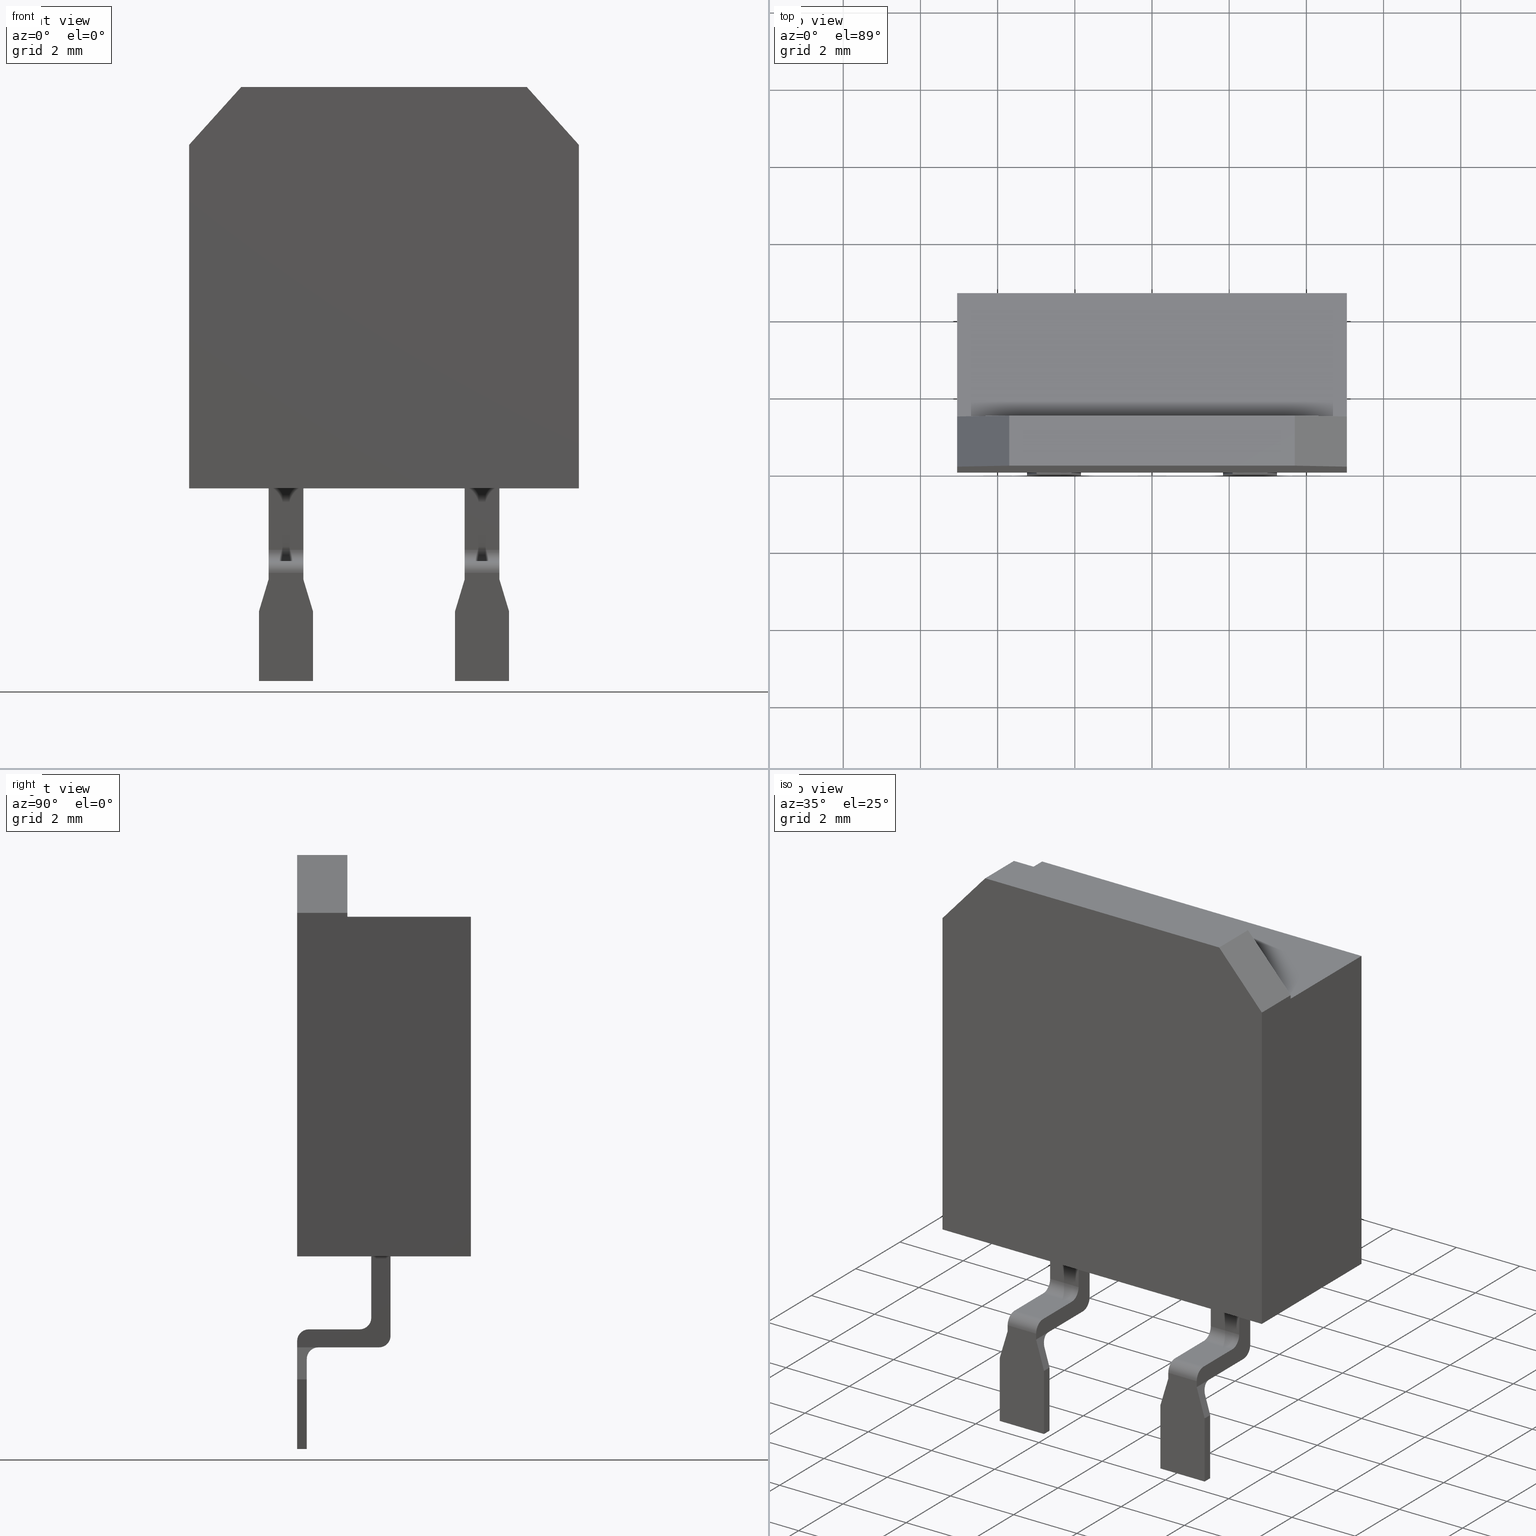
[diagram: canonical four-view strip — front | top / right | iso, engineering-drawing reading convention]
A machine part, canonical four-view strip (front | top / right | iso — engineering-drawing reading convention). The complete STEP part file that produces these views, byte-faithful:
ISO-10303-21;
HEADER;
FILE_DESCRIPTION((''),'2;1');
FILE_NAME('PWR263S-20','2012-08-17T',('ryans'),('Bourns, Inc.'),
'PRO/ENGINEER BY PARAMETRIC TECHNOLOGY CORPORATION, 2010100',
'PRO/ENGINEER BY PARAMETRIC TECHNOLOGY CORPORATION, 2010100','');
FILE_SCHEMA(('CONFIG_CONTROL_DESIGN'));
ENDSEC;
DATA;
#1=DIRECTION('',(-6.691306063589E-1,0.E0,-7.431448254774E-1));
#2=VECTOR('',#1,2.017543342317E0);
#3=CARTESIAN_POINT('',(-3.7E0,0.E0,6.E0));
#4=LINE('',#3,#2);
#5=DIRECTION('',(-1.E0,0.E0,0.E0));
#6=VECTOR('',#5,7.4E0);
#7=CARTESIAN_POINT('',(3.7E0,0.E0,6.E0));
#8=LINE('',#7,#6);
#9=DIRECTION('',(-6.691306063589E-1,0.E0,7.431448254774E-1));
#10=VECTOR('',#9,2.017543342317E0);
#11=CARTESIAN_POINT('',(5.05E0,0.E0,4.500673104981E0));
#12=LINE('',#11,#10);
#13=DIRECTION('',(-1.E0,0.E0,0.E0));
#14=VECTOR('',#13,1.01E1);
#15=CARTESIAN_POINT('',(5.05E0,0.E0,-4.4E0));
#16=LINE('',#15,#14);
#17=DIRECTION('',(0.E0,1.E0,0.E0));
#18=VECTOR('',#17,1.3E0);
#19=CARTESIAN_POINT('',(-5.05E0,0.E0,4.500673104981E0));
#20=LINE('',#19,#18);
#21=DIRECTION('',(0.E0,0.E0,-1.E0));
#22=VECTOR('',#21,8.900673104981E0);
#23=CARTESIAN_POINT('',(-5.05E0,0.E0,4.500673104981E0));
#24=LINE('',#23,#22);
#25=DIRECTION('',(0.E0,1.E0,0.E0));
#26=VECTOR('',#25,4.5E0);
#27=CARTESIAN_POINT('',(-5.05E0,0.E0,-4.4E0));
#28=LINE('',#27,#26);
#29=DIRECTION('',(1.E0,0.E0,0.E0));
#30=VECTOR('',#29,1.01E1);
#31=CARTESIAN_POINT('',(-5.05E0,1.3E0,4.4E0));
#32=LINE('',#31,#30);
#33=DIRECTION('',(0.E0,1.E0,0.E0));
#34=VECTOR('',#33,3.2E0);
#35=CARTESIAN_POINT('',(-5.05E0,1.3E0,4.4E0));
#36=LINE('',#35,#34);
#37=DIRECTION('',(0.E0,0.E0,1.E0));
#38=VECTOR('',#37,1.006731049806E-1);
#39=CARTESIAN_POINT('',(5.05E0,1.3E0,4.4E0));
#40=LINE('',#39,#38);
#41=DIRECTION('',(-6.691306063589E-1,0.E0,7.431448254774E-1));
#42=VECTOR('',#41,2.017543342317E0);
#43=CARTESIAN_POINT('',(5.05E0,1.3E0,4.500673104981E0));
#44=LINE('',#43,#42);
#45=DIRECTION('',(-1.E0,0.E0,0.E0));
#46=VECTOR('',#45,7.4E0);
#47=CARTESIAN_POINT('',(3.7E0,1.3E0,6.E0));
#48=LINE('',#47,#46);
#49=DIRECTION('',(-6.691306063589E-1,0.E0,-7.431448254774E-1));
#50=VECTOR('',#49,2.017543342317E0);
#51=CARTESIAN_POINT('',(-3.7E0,1.3E0,6.E0));
#52=LINE('',#51,#50);
#53=DIRECTION('',(0.E0,0.E0,-1.E0));
#54=VECTOR('',#53,1.006731049806E-1);
#55=CARTESIAN_POINT('',(-5.05E0,1.3E0,4.500673104981E0));
#56=LINE('',#55,#54);
#57=DIRECTION('',(0.E0,0.E0,1.E0));
#58=VECTOR('',#57,8.900673104981E0);
#59=CARTESIAN_POINT('',(5.05E0,0.E0,-4.4E0));
#60=LINE('',#59,#58);
#61=DIRECTION('',(0.E0,1.E0,0.E0));
#62=VECTOR('',#61,3.2E0);
#63=CARTESIAN_POINT('',(5.05E0,1.3E0,4.4E0));
#64=LINE('',#63,#62);
#65=DIRECTION('',(0.E0,1.E0,0.E0));
#66=VECTOR('',#65,1.3E0);
#67=CARTESIAN_POINT('',(5.05E0,0.E0,4.500673104981E0));
#68=LINE('',#67,#66);
#69=DIRECTION('',(0.E0,1.E0,0.E0));
#70=VECTOR('',#69,1.3E0);
#71=CARTESIAN_POINT('',(3.7E0,0.E0,6.E0));
#72=LINE('',#71,#70);
#73=DIRECTION('',(0.E0,1.E0,0.E0));
#74=VECTOR('',#73,1.3E0);
#75=CARTESIAN_POINT('',(-3.7E0,0.E0,6.E0));
#76=LINE('',#75,#74);
#77=DIRECTION('',(0.E0,0.E0,1.E0));
#78=VECTOR('',#77,8.8E0);
#79=CARTESIAN_POINT('',(-5.05E0,4.5E0,-4.4E0));
#80=LINE('',#79,#78);
#81=DIRECTION('',(-1.E0,0.E0,0.E0));
#82=VECTOR('',#81,1.01E1);
#83=CARTESIAN_POINT('',(5.05E0,4.5E0,-4.4E0));
#84=LINE('',#83,#82);
#85=DIRECTION('',(0.E0,0.E0,-1.E0));
#86=VECTOR('',#85,8.8E0);
#87=CARTESIAN_POINT('',(5.05E0,4.5E0,4.4E0));
#88=LINE('',#87,#86);
#89=DIRECTION('',(1.E0,0.E0,0.E0));
#90=VECTOR('',#89,1.01E1);
#91=CARTESIAN_POINT('',(-5.05E0,4.5E0,4.4E0));
#92=LINE('',#91,#90);
#93=DIRECTION('',(0.E0,1.E0,0.E0));
#94=VECTOR('',#93,4.5E0);
#95=CARTESIAN_POINT('',(5.05E0,0.E0,-4.4E0));
#96=LINE('',#95,#94);
#97=DIRECTION('',(1.E0,0.E0,0.E0));
#98=VECTOR('',#97,9.E-1);
#99=CARTESIAN_POINT('',(2.09E0,1.92E0,-4.4E0));
#100=LINE('',#99,#98);
#101=DIRECTION('',(1.E0,0.E0,0.E0));
#102=VECTOR('',#101,9.E-1);
#103=CARTESIAN_POINT('',(2.09E0,2.42E0,-4.4E0));
#104=LINE('',#103,#102);
#105=DIRECTION('',(0.E0,-1.E0,0.E0));
#106=VECTOR('',#105,5.E-1);
#107=CARTESIAN_POINT('',(2.99E0,2.42E0,-4.4E0));
#108=LINE('',#107,#106);
#109=DIRECTION('',(1.E0,0.E0,0.E0));
#110=VECTOR('',#109,9.E-1);
#111=CARTESIAN_POINT('',(-2.99E0,1.92E0,-4.4E0));
#112=LINE('',#111,#110);
#113=DIRECTION('',(1.E0,0.E0,0.E0));
#114=VECTOR('',#113,9.E-1);
#115=CARTESIAN_POINT('',(-2.99E0,2.42E0,-4.4E0));
#116=LINE('',#115,#114);
#117=DIRECTION('',(0.E0,-1.E0,0.E0));
#118=VECTOR('',#117,5.E-1);
#119=CARTESIAN_POINT('',(-2.09E0,2.42E0,-4.4E0));
#120=LINE('',#119,#118);
#121=DIRECTION('',(0.E0,0.E0,-1.E0));
#122=VECTOR('',#121,1.59E0);
#123=CARTESIAN_POINT('',(2.99E0,1.92E0,-4.4E0));
#124=LINE('',#123,#122);
#125=DIRECTION('',(1.E0,0.E0,0.E0));
#126=VECTOR('',#125,9.E-1);
#127=CARTESIAN_POINT('',(2.09E0,1.92E0,-5.99E0));
#128=LINE('',#127,#126);
#129=DIRECTION('',(0.E0,0.E0,-1.E0));
#130=VECTOR('',#129,1.59E0);
#131=CARTESIAN_POINT('',(2.09E0,1.92E0,-4.4E0));
#132=LINE('',#131,#130);
#133=DIRECTION('',(0.E0,-1.E0,0.E0));
#134=VECTOR('',#133,5.5E-1);
#135=CARTESIAN_POINT('',(2.99E0,5.5E-1,-6.757E0));
#136=LINE('',#135,#134);
#137=DIRECTION('',(0.E0,0.E0,1.E0));
#138=VECTOR('',#137,2.057E0);
#139=CARTESIAN_POINT('',(2.99E0,2.42E0,-6.457E0));
#140=LINE('',#139,#138);
#141=DIRECTION('',(0.E0,0.E0,1.E0));
#142=VECTOR('',#141,2.057E0);
#143=CARTESIAN_POINT('',(2.09E0,2.42E0,-6.457E0));
#144=LINE('',#143,#142);
#145=DIRECTION('',(-1.E0,0.E0,0.E0));
#146=VECTOR('',#145,9.E-1);
#147=CARTESIAN_POINT('',(2.99E0,2.42E0,-6.457E0));
#148=LINE('',#147,#146);
#149=DIRECTION('',(0.E0,-1.E0,0.E0));
#150=VECTOR('',#149,5.E-1);
#151=CARTESIAN_POINT('',(2.09E0,2.42E0,-4.4E0));
#152=LINE('',#151,#150);
#153=CARTESIAN_POINT('',(2.99E0,1.62E0,-5.99E0));
#154=DIRECTION('',(1.E0,0.E0,0.E0));
#155=DIRECTION('',(0.E0,0.E0,-1.E0));
#156=AXIS2_PLACEMENT_3D('',#153,#154,#155);
#158=CARTESIAN_POINT('',(2.09E0,1.62E0,-5.99E0));
#159=DIRECTION('',(1.E0,0.E0,0.E0));
#160=DIRECTION('',(0.E0,0.E0,-1.E0));
#161=AXIS2_PLACEMENT_3D('',#158,#159,#160);
#163=DIRECTION('',(0.E0,-1.E0,0.E0));
#164=VECTOR('',#163,1.32E0);
#165=CARTESIAN_POINT('',(2.99E0,1.62E0,-6.29E0));
#166=LINE('',#165,#164);
#167=DIRECTION('',(-1.E0,0.E0,0.E0));
#168=VECTOR('',#167,9.E-1);
#169=CARTESIAN_POINT('',(2.99E0,3.E-1,-6.29E0));
#170=LINE('',#169,#168);
#171=DIRECTION('',(0.E0,-1.E0,0.E0));
#172=VECTOR('',#171,1.32E0);
#173=CARTESIAN_POINT('',(2.09E0,1.62E0,-6.29E0));
#174=LINE('',#173,#172);
#175=DIRECTION('',(1.E0,0.E0,0.E0));
#176=VECTOR('',#175,9.E-1);
#177=CARTESIAN_POINT('',(2.09E0,1.62E0,-6.29E0));
#178=LINE('',#177,#176);
#179=CARTESIAN_POINT('',(2.99E0,3.E-1,-6.59E0));
#180=DIRECTION('',(-1.E0,0.E0,0.E0));
#181=DIRECTION('',(0.E0,-1.E0,0.E0));
#182=AXIS2_PLACEMENT_3D('',#179,#180,#181);
#184=CARTESIAN_POINT('',(2.09E0,3.E-1,-6.59E0));
#185=DIRECTION('',(-1.E0,0.E0,0.E0));
#186=DIRECTION('',(0.E0,-1.E0,0.E0));
#187=AXIS2_PLACEMENT_3D('',#184,#185,#186);
#189=DIRECTION('',(-2.891174804093E-1,0.E0,9.572936239847E-1));
#190=VECTOR('',#189,8.647003966903E-1);
#191=CARTESIAN_POINT('',(3.24E0,0.E0,-7.584772176409E0));
#192=LINE('',#191,#190);
#193=DIRECTION('',(-2.891174804093E-1,0.E0,-9.572936239847E-1));
#194=VECTOR('',#193,8.647003966903E-1);
#195=CARTESIAN_POINT('',(2.09E0,0.E0,-6.757E0));
#196=LINE('',#195,#194);
#197=DIRECTION('',(0.E0,0.E0,-1.E0));
#198=VECTOR('',#197,1.67E-1);
#199=CARTESIAN_POINT('',(2.09E0,0.E0,-6.59E0));
#200=LINE('',#199,#198);
#201=DIRECTION('',(-1.E0,0.E0,0.E0));
#202=VECTOR('',#201,9.E-1);
#203=CARTESIAN_POINT('',(2.99E0,0.E0,-6.59E0));
#204=LINE('',#203,#202);
#205=DIRECTION('',(0.E0,0.E0,-1.E0));
#206=VECTOR('',#205,1.67E-1);
#207=CARTESIAN_POINT('',(2.99E0,0.E0,-6.59E0));
#208=LINE('',#207,#206);
#209=DIRECTION('',(0.E0,1.E0,0.E0));
#210=VECTOR('',#209,2.5E-1);
#211=CARTESIAN_POINT('',(3.24E0,0.E0,-7.584772176409E0));
#212=LINE('',#211,#210);
#213=DIRECTION('',(0.E0,0.E0,1.E0));
#214=VECTOR('',#213,1.805227823591E0);
#215=CARTESIAN_POINT('',(3.24E0,2.5E-1,-9.39E0));
#216=LINE('',#215,#214);
#217=DIRECTION('',(0.E0,1.E0,0.E0));
#218=VECTOR('',#217,2.5E-1);
#219=CARTESIAN_POINT('',(3.24E0,0.E0,-9.39E0));
#220=LINE('',#219,#218);
#221=DIRECTION('',(0.E0,0.E0,-1.E0));
#222=VECTOR('',#221,1.805227823591E0);
#223=CARTESIAN_POINT('',(3.24E0,0.E0,-7.584772176409E0));
#224=LINE('',#223,#222);
#225=DIRECTION('',(2.891174804093E-1,0.E0,-9.572936239847E-1));
#226=VECTOR('',#225,5.513169242806E-1);
#227=CARTESIAN_POINT('',(3.080604639945E0,2.5E-1,-7.057E0));
#228=LINE('',#227,#226);
#229=DIRECTION('',(1.E0,0.E0,0.E0));
#230=VECTOR('',#229,1.081209279890E0);
#231=CARTESIAN_POINT('',(1.999395360055E0,2.5E-1,-7.057E0));
#232=LINE('',#231,#230);
#233=DIRECTION('',(-2.891174804093E-1,0.E0,-9.572936239847E-1));
#234=VECTOR('',#233,5.513169242806E-1);
#235=CARTESIAN_POINT('',(1.999395360055E0,2.5E-1,-7.057E0));
#236=LINE('',#235,#234);
#237=DIRECTION('',(1.E0,0.E0,0.E0));
#238=VECTOR('',#237,1.4E0);
#239=CARTESIAN_POINT('',(1.84E0,2.5E-1,-9.39E0));
#240=LINE('',#239,#238);
#241=CARTESIAN_POINT('',(2.99E0,5.5E-1,-6.757E0));
#242=CARTESIAN_POINT('',(2.99E0,5.244423553163E-1,-6.757E0));
#243=CARTESIAN_POINT('',(2.991854875177E0,4.797427111526E-1,-6.763141656247E0));
#244=CARTESIAN_POINT('',(2.999825545760E0,4.050811004776E-1,-6.789533253591E0));
#245=CARTESIAN_POINT('',(3.015675030519E0,3.321131000954E-1,-6.842012303569E0));
#246=CARTESIAN_POINT('',(3.042333404650E0,2.709732587368E-1,-6.930280545064E0));
#247=CARTESIAN_POINT('',(3.065826316273E0,2.5E-1,-7.008067659400E0));
#248=CARTESIAN_POINT('',(3.080604639945E0,2.5E-1,-7.057E0));
#250=CARTESIAN_POINT('',(2.09E0,5.5E-1,-6.757E0));
#251=CARTESIAN_POINT('',(2.09E0,5.244423553163E-1,-6.757E0));
#252=CARTESIAN_POINT('',(2.088145124823E0,4.797427111526E-1,-6.763141656247E0));
#253=CARTESIAN_POINT('',(2.080174454240E0,4.050811004776E-1,-6.789533253591E0));
#254=CARTESIAN_POINT('',(2.064324969481E0,3.321131000954E-1,-6.842012303569E0));
#255=CARTESIAN_POINT('',(2.037666595350E0,2.709732587368E-1,-6.930280545064E0));
#256=CARTESIAN_POINT('',(2.014173683727E0,2.5E-1,-7.008067659400E0));
#257=CARTESIAN_POINT('',(1.999395360055E0,2.5E-1,-7.057E0));
#259=DIRECTION('',(0.E0,1.E0,0.E0));
#260=VECTOR('',#259,1.57E0);
#261=CARTESIAN_POINT('',(2.99E0,5.5E-1,-6.757E0));
#262=LINE('',#261,#260);
#263=DIRECTION('',(-1.E0,0.E0,0.E0));
#264=VECTOR('',#263,9.E-1);
#265=CARTESIAN_POINT('',(2.99E0,2.12E0,-6.757E0));
#266=LINE('',#265,#264);
#267=DIRECTION('',(0.E0,1.E0,0.E0));
#268=VECTOR('',#267,1.57E0);
#269=CARTESIAN_POINT('',(2.09E0,5.5E-1,-6.757E0));
#270=LINE('',#269,#268);
#271=DIRECTION('',(1.E0,0.E0,0.E0));
#272=VECTOR('',#271,9.E-1);
#273=CARTESIAN_POINT('',(2.09E0,5.5E-1,-6.757E0));
#274=LINE('',#273,#272);
#275=CARTESIAN_POINT('',(2.99E0,2.12E0,-6.457E0));
#276=DIRECTION('',(-1.E0,0.E0,0.E0));
#277=DIRECTION('',(0.E0,1.E0,0.E0));
#278=AXIS2_PLACEMENT_3D('',#275,#276,#277);
#280=CARTESIAN_POINT('',(2.09E0,2.12E0,-6.457E0));
#281=DIRECTION('',(-1.E0,0.E0,0.E0));
#282=DIRECTION('',(0.E0,1.E0,0.E0));
#283=AXIS2_PLACEMENT_3D('',#280,#281,#282);
#285=DIRECTION('',(0.E0,-1.E0,0.E0));
#286=VECTOR('',#285,5.5E-1);
#287=CARTESIAN_POINT('',(2.09E0,5.5E-1,-6.757E0));
#288=LINE('',#287,#286);
#289=DIRECTION('',(0.E0,1.E0,0.E0));
#290=VECTOR('',#289,2.5E-1);
#291=CARTESIAN_POINT('',(1.84E0,0.E0,-7.584772176409E0));
#292=LINE('',#291,#290);
#293=DIRECTION('',(0.E0,0.E0,-1.E0));
#294=VECTOR('',#293,1.805227823591E0);
#295=CARTESIAN_POINT('',(1.84E0,0.E0,-7.584772176409E0));
#296=LINE('',#295,#294);
#297=DIRECTION('',(0.E0,1.E0,0.E0));
#298=VECTOR('',#297,2.5E-1);
#299=CARTESIAN_POINT('',(1.84E0,0.E0,-9.39E0));
#300=LINE('',#299,#298);
#301=DIRECTION('',(0.E0,0.E0,1.E0));
#302=VECTOR('',#301,1.805227823591E0);
#303=CARTESIAN_POINT('',(1.84E0,2.5E-1,-9.39E0));
#304=LINE('',#303,#302);
#305=DIRECTION('',(1.E0,0.E0,0.E0));
#306=VECTOR('',#305,1.4E0);
#307=CARTESIAN_POINT('',(1.84E0,0.E0,-9.39E0));
#308=LINE('',#307,#306);
#309=DIRECTION('',(0.E0,0.E0,-1.E0));
#310=VECTOR('',#309,1.59E0);
#311=CARTESIAN_POINT('',(-2.99E0,1.92E0,-4.4E0));
#312=LINE('',#311,#310);
#313=DIRECTION('',(0.E0,0.E0,-1.E0));
#314=VECTOR('',#313,1.59E0);
#315=CARTESIAN_POINT('',(-2.09E0,1.92E0,-4.4E0));
#316=LINE('',#315,#314);
#317=DIRECTION('',(1.E0,0.E0,0.E0));
#318=VECTOR('',#317,9.E-1);
#319=CARTESIAN_POINT('',(-2.99E0,1.92E0,-5.99E0));
#320=LINE('',#319,#318);
#321=DIRECTION('',(0.E0,-1.E0,0.E0));
#322=VECTOR('',#321,5.E-1);
#323=CARTESIAN_POINT('',(-2.99E0,2.42E0,-4.4E0));
#324=LINE('',#323,#322);
#325=CARTESIAN_POINT('',(-2.99E0,1.62E0,-5.99E0));
#326=DIRECTION('',(1.E0,0.E0,0.E0));
#327=DIRECTION('',(0.E0,0.E0,-1.E0));
#328=AXIS2_PLACEMENT_3D('',#325,#326,#327);
#330=CARTESIAN_POINT('',(-2.09E0,1.62E0,-5.99E0));
#331=DIRECTION('',(1.E0,0.E0,0.E0));
#332=DIRECTION('',(0.E0,0.E0,-1.E0));
#333=AXIS2_PLACEMENT_3D('',#330,#331,#332);
#335=DIRECTION('',(0.E0,-1.E0,0.E0));
#336=VECTOR('',#335,5.5E-1);
#337=CARTESIAN_POINT('',(-2.09E0,5.5E-1,-6.757E0));
#338=LINE('',#337,#336);
#339=DIRECTION('',(0.E0,0.E0,1.E0));
#340=VECTOR('',#339,2.057E0);
#341=CARTESIAN_POINT('',(-2.99E0,2.42E0,-6.457E0));
#342=LINE('',#341,#340);
#343=DIRECTION('',(-1.E0,0.E0,0.E0));
#344=VECTOR('',#343,9.E-1);
#345=CARTESIAN_POINT('',(-2.09E0,2.42E0,-6.457E0));
#346=LINE('',#345,#344);
#347=DIRECTION('',(0.E0,0.E0,1.E0));
#348=VECTOR('',#347,2.057E0);
#349=CARTESIAN_POINT('',(-2.09E0,2.42E0,-6.457E0));
#350=LINE('',#349,#348);
#351=CARTESIAN_POINT('',(-2.99E0,2.12E0,-6.457E0));
#352=DIRECTION('',(-1.E0,0.E0,0.E0));
#353=DIRECTION('',(0.E0,1.E0,0.E0));
#354=AXIS2_PLACEMENT_3D('',#351,#352,#353);
#356=CARTESIAN_POINT('',(-2.09E0,2.12E0,-6.457E0));
#357=DIRECTION('',(-1.E0,0.E0,0.E0));
#358=DIRECTION('',(0.E0,1.E0,0.E0));
#359=AXIS2_PLACEMENT_3D('',#356,#357,#358);
#361=DIRECTION('',(0.E0,1.E0,0.E0));
#362=VECTOR('',#361,1.57E0);
#363=CARTESIAN_POINT('',(-2.99E0,5.5E-1,-6.757E0));
#364=LINE('',#363,#362);
#365=DIRECTION('',(1.E0,0.E0,0.E0));
#366=VECTOR('',#365,9.E-1);
#367=CARTESIAN_POINT('',(-2.99E0,5.5E-1,-6.757E0));
#368=LINE('',#367,#366);
#369=DIRECTION('',(0.E0,1.E0,0.E0));
#370=VECTOR('',#369,1.57E0);
#371=CARTESIAN_POINT('',(-2.09E0,5.5E-1,-6.757E0));
#372=LINE('',#371,#370);
#373=DIRECTION('',(-1.E0,0.E0,0.E0));
#374=VECTOR('',#373,9.E-1);
#375=CARTESIAN_POINT('',(-2.09E0,2.12E0,-6.757E0));
#376=LINE('',#375,#374);
#377=CARTESIAN_POINT('',(-2.99E0,5.5E-1,-6.757E0));
#378=CARTESIAN_POINT('',(-2.99E0,5.244423553163E-1,-6.757E0));
#379=CARTESIAN_POINT('',(-2.991854875177E0,4.797427111526E-1,
-6.763141656247E0));
#380=CARTESIAN_POINT('',(-2.999825545760E0,4.050811004776E-1,
-6.789533253591E0));
#381=CARTESIAN_POINT('',(-3.015675030519E0,3.321131000954E-1,
-6.842012303569E0));
#382=CARTESIAN_POINT('',(-3.042333404650E0,2.709732587368E-1,
-6.930280545064E0));
#383=CARTESIAN_POINT('',(-3.065826316273E0,2.5E-1,-7.008067659400E0));
#384=CARTESIAN_POINT('',(-3.080604639945E0,2.5E-1,-7.057E0));
#386=CARTESIAN_POINT('',(-2.09E0,5.5E-1,-6.757E0));
#387=CARTESIAN_POINT('',(-2.09E0,5.244423553163E-1,-6.757E0));
#388=CARTESIAN_POINT('',(-2.088145124823E0,4.797427111526E-1,
-6.763141656247E0));
#389=CARTESIAN_POINT('',(-2.080174454240E0,4.050811004776E-1,
-6.789533253591E0));
#390=CARTESIAN_POINT('',(-2.064324969481E0,3.321131000954E-1,
-6.842012303569E0));
#391=CARTESIAN_POINT('',(-2.037666595350E0,2.709732587368E-1,
-6.930280545064E0));
#392=CARTESIAN_POINT('',(-2.014173683727E0,2.5E-1,-7.008067659400E0));
#393=CARTESIAN_POINT('',(-1.999395360055E0,2.5E-1,-7.057E0));
#395=DIRECTION('',(0.E0,-1.E0,0.E0));
#396=VECTOR('',#395,5.5E-1);
#397=CARTESIAN_POINT('',(-2.99E0,5.5E-1,-6.757E0));
#398=LINE('',#397,#396);
#399=DIRECTION('',(0.E0,1.E0,0.E0));
#400=VECTOR('',#399,2.5E-1);
#401=CARTESIAN_POINT('',(-3.24E0,0.E0,-7.584772176409E0));
#402=LINE('',#401,#400);
#403=DIRECTION('',(0.E0,0.E0,-1.E0));
#404=VECTOR('',#403,1.805227823591E0);
#405=CARTESIAN_POINT('',(-3.24E0,0.E0,-7.584772176409E0));
#406=LINE('',#405,#404);
#407=DIRECTION('',(0.E0,1.E0,0.E0));
#408=VECTOR('',#407,2.5E-1);
#409=CARTESIAN_POINT('',(-3.24E0,0.E0,-9.39E0));
#410=LINE('',#409,#408);
#411=DIRECTION('',(0.E0,0.E0,1.E0));
#412=VECTOR('',#411,1.805227823591E0);
#413=CARTESIAN_POINT('',(-3.24E0,2.5E-1,-9.39E0));
#414=LINE('',#413,#412);
#415=DIRECTION('',(0.E0,0.E0,-1.E0));
#416=VECTOR('',#415,1.67E-1);
#417=CARTESIAN_POINT('',(-2.99E0,0.E0,-6.59E0));
#418=LINE('',#417,#416);
#419=DIRECTION('',(-1.E0,0.E0,0.E0));
#420=VECTOR('',#419,9.E-1);
#421=CARTESIAN_POINT('',(-2.09E0,0.E0,-6.59E0));
#422=LINE('',#421,#420);
#423=DIRECTION('',(0.E0,0.E0,-1.E0));
#424=VECTOR('',#423,1.67E-1);
#425=CARTESIAN_POINT('',(-2.09E0,0.E0,-6.59E0));
#426=LINE('',#425,#424);
#427=DIRECTION('',(-2.891174804093E-1,0.E0,9.572936239847E-1));
#428=VECTOR('',#427,8.647003966903E-1);
#429=CARTESIAN_POINT('',(-1.84E0,0.E0,-7.584772176409E0));
#430=LINE('',#429,#428);
#431=DIRECTION('',(-2.891174804093E-1,0.E0,-9.572936239847E-1));
#432=VECTOR('',#431,8.647003966903E-1);
#433=CARTESIAN_POINT('',(-2.99E0,0.E0,-6.757E0));
#434=LINE('',#433,#432);
#435=CARTESIAN_POINT('',(-2.99E0,3.E-1,-6.59E0));
#436=DIRECTION('',(-1.E0,0.E0,0.E0));
#437=DIRECTION('',(0.E0,-1.E0,0.E0));
#438=AXIS2_PLACEMENT_3D('',#435,#436,#437);
#440=CARTESIAN_POINT('',(-2.09E0,3.E-1,-6.59E0));
#441=DIRECTION('',(-1.E0,0.E0,0.E0));
#442=DIRECTION('',(0.E0,-1.E0,0.E0));
#443=AXIS2_PLACEMENT_3D('',#440,#441,#442);
#445=DIRECTION('',(0.E0,-1.E0,0.E0));
#446=VECTOR('',#445,1.32E0);
#447=CARTESIAN_POINT('',(-2.99E0,1.62E0,-6.29E0));
#448=LINE('',#447,#446);
#449=DIRECTION('',(1.E0,0.E0,0.E0));
#450=VECTOR('',#449,9.E-1);
#451=CARTESIAN_POINT('',(-2.99E0,1.62E0,-6.29E0));
#452=LINE('',#451,#450);
#453=DIRECTION('',(0.E0,-1.E0,0.E0));
#454=VECTOR('',#453,1.32E0);
#455=CARTESIAN_POINT('',(-2.09E0,1.62E0,-6.29E0));
#456=LINE('',#455,#454);
#457=DIRECTION('',(-1.E0,0.E0,0.E0));
#458=VECTOR('',#457,9.E-1);
#459=CARTESIAN_POINT('',(-2.09E0,3.E-1,-6.29E0));
#460=LINE('',#459,#458);
#461=DIRECTION('',(0.E0,1.E0,0.E0));
#462=VECTOR('',#461,2.5E-1);
#463=CARTESIAN_POINT('',(-1.84E0,0.E0,-7.584772176409E0));
#464=LINE('',#463,#462);
#465=DIRECTION('',(0.E0,0.E0,1.E0));
#466=VECTOR('',#465,1.805227823591E0);
#467=CARTESIAN_POINT('',(-1.84E0,2.5E-1,-9.39E0));
#468=LINE('',#467,#466);
#469=DIRECTION('',(0.E0,1.E0,0.E0));
#470=VECTOR('',#469,2.5E-1);
#471=CARTESIAN_POINT('',(-1.84E0,0.E0,-9.39E0));
#472=LINE('',#471,#470);
#473=DIRECTION('',(0.E0,0.E0,-1.E0));
#474=VECTOR('',#473,1.805227823591E0);
#475=CARTESIAN_POINT('',(-1.84E0,0.E0,-7.584772176409E0));
#476=LINE('',#475,#474);
#477=DIRECTION('',(-2.891174804093E-1,0.E0,-9.572936239847E-1));
#478=VECTOR('',#477,5.513169242806E-1);
#479=CARTESIAN_POINT('',(-3.080604639945E0,2.5E-1,-7.057E0));
#480=LINE('',#479,#478);
#481=DIRECTION('',(1.E0,0.E0,0.E0));
#482=VECTOR('',#481,1.4E0);
#483=CARTESIAN_POINT('',(-3.24E0,2.5E-1,-9.39E0));
#484=LINE('',#483,#482);
#485=DIRECTION('',(2.891174804093E-1,0.E0,-9.572936239847E-1));
#486=VECTOR('',#485,5.513169242806E-1);
#487=CARTESIAN_POINT('',(-1.999395360055E0,2.5E-1,-7.057E0));
#488=LINE('',#487,#486);
#489=DIRECTION('',(1.E0,0.E0,0.E0));
#490=VECTOR('',#489,1.081209279890E0);
#491=CARTESIAN_POINT('',(-3.080604639945E0,2.5E-1,-7.057E0));
#492=LINE('',#491,#490);
#493=DIRECTION('',(1.E0,0.E0,0.E0));
#494=VECTOR('',#493,1.4E0);
#495=CARTESIAN_POINT('',(-3.24E0,0.E0,-9.39E0));
#496=LINE('',#495,#494);
#497=CARTESIAN_POINT('',(5.05E0,0.E0,-4.4E0));
#498=CARTESIAN_POINT('',(-5.05E0,0.E0,-4.4E0));
#499=VERTEX_POINT('',#497);
#500=VERTEX_POINT('',#498);
#501=CARTESIAN_POINT('',(-5.05E0,4.5E0,-4.4E0));
#502=CARTESIAN_POINT('',(-5.05E0,4.5E0,4.4E0));
#503=VERTEX_POINT('',#501);
#504=VERTEX_POINT('',#502);
#505=CARTESIAN_POINT('',(5.05E0,4.5E0,4.4E0));
#506=VERTEX_POINT('',#505);
#507=CARTESIAN_POINT('',(5.05E0,4.5E0,-4.4E0));
#508=VERTEX_POINT('',#507);
#509=CARTESIAN_POINT('',(1.84E0,0.E0,-9.39E0));
#510=CARTESIAN_POINT('',(1.84E0,2.5E-1,-9.39E0));
#511=VERTEX_POINT('',#509);
#512=VERTEX_POINT('',#510);
#513=CARTESIAN_POINT('',(3.24E0,0.E0,-9.39E0));
#514=CARTESIAN_POINT('',(3.24E0,2.5E-1,-9.39E0));
#515=VERTEX_POINT('',#513);
#516=VERTEX_POINT('',#514);
#517=CARTESIAN_POINT('',(-3.24E0,0.E0,-9.39E0));
#518=CARTESIAN_POINT('',(-3.24E0,2.5E-1,-9.39E0));
#519=VERTEX_POINT('',#517);
#520=VERTEX_POINT('',#518);
#521=CARTESIAN_POINT('',(-1.84E0,0.E0,-9.39E0));
#522=CARTESIAN_POINT('',(-1.84E0,2.5E-1,-9.39E0));
#523=VERTEX_POINT('',#521);
#524=VERTEX_POINT('',#522);
#525=CARTESIAN_POINT('',(3.7E0,0.E0,6.E0));
#526=CARTESIAN_POINT('',(-3.7E0,0.E0,6.E0));
#527=VERTEX_POINT('',#525);
#528=VERTEX_POINT('',#526);
#529=CARTESIAN_POINT('',(3.7E0,1.3E0,6.E0));
#530=CARTESIAN_POINT('',(-3.7E0,1.3E0,6.E0));
#531=VERTEX_POINT('',#529);
#532=VERTEX_POINT('',#530);
#533=CARTESIAN_POINT('',(-5.05E0,1.3E0,4.4E0));
#534=CARTESIAN_POINT('',(5.05E0,1.3E0,4.4E0));
#535=VERTEX_POINT('',#533);
#536=VERTEX_POINT('',#534);
#537=CARTESIAN_POINT('',(5.05E0,0.E0,4.500673104981E0));
#538=VERTEX_POINT('',#537);
#539=CARTESIAN_POINT('',(-5.05E0,0.E0,4.500673104981E0));
#540=VERTEX_POINT('',#539);
#541=CARTESIAN_POINT('',(5.05E0,1.3E0,4.500673104981E0));
#542=VERTEX_POINT('',#541);
#543=CARTESIAN_POINT('',(-5.05E0,1.3E0,4.500673104981E0));
#544=VERTEX_POINT('',#543);
#545=CARTESIAN_POINT('',(1.84E0,0.E0,-7.584772176409E0));
#546=CARTESIAN_POINT('',(1.84E0,2.5E-1,-7.584772176409E0));
#547=VERTEX_POINT('',#545);
#548=VERTEX_POINT('',#546);
#549=CARTESIAN_POINT('',(3.24E0,0.E0,-7.584772176409E0));
#550=CARTESIAN_POINT('',(3.24E0,2.5E-1,-7.584772176409E0));
#551=VERTEX_POINT('',#549);
#552=VERTEX_POINT('',#550);
#553=CARTESIAN_POINT('',(3.080604639945E0,2.5E-1,-7.057E0));
#554=VERTEX_POINT('',#553);
#555=CARTESIAN_POINT('',(1.999395360055E0,2.5E-1,-7.057E0));
#556=VERTEX_POINT('',#555);
#557=CARTESIAN_POINT('',(2.99E0,1.92E0,-4.4E0));
#558=CARTESIAN_POINT('',(2.99E0,1.92E0,-5.99E0));
#559=VERTEX_POINT('',#557);
#560=VERTEX_POINT('',#558);
#561=CARTESIAN_POINT('',(2.09E0,1.92E0,-4.4E0));
#562=CARTESIAN_POINT('',(2.09E0,1.92E0,-5.99E0));
#563=VERTEX_POINT('',#561);
#564=VERTEX_POINT('',#562);
#565=CARTESIAN_POINT('',(2.99E0,1.62E0,-6.29E0));
#566=CARTESIAN_POINT('',(2.99E0,3.E-1,-6.29E0));
#567=VERTEX_POINT('',#565);
#568=VERTEX_POINT('',#566);
#569=CARTESIAN_POINT('',(2.09E0,1.62E0,-6.29E0));
#570=CARTESIAN_POINT('',(2.09E0,3.E-1,-6.29E0));
#571=VERTEX_POINT('',#569);
#572=VERTEX_POINT('',#570);
#573=CARTESIAN_POINT('',(2.99E0,0.E0,-6.757E0));
#574=VERTEX_POINT('',#573);
#575=CARTESIAN_POINT('',(2.99E0,0.E0,-6.59E0));
#576=VERTEX_POINT('',#575);
#577=CARTESIAN_POINT('',(2.09E0,0.E0,-6.59E0));
#578=CARTESIAN_POINT('',(2.09E0,0.E0,-6.757E0));
#579=VERTEX_POINT('',#577);
#580=VERTEX_POINT('',#578);
#581=CARTESIAN_POINT('',(-3.24E0,0.E0,-7.584772176409E0));
#582=CARTESIAN_POINT('',(-3.24E0,2.5E-1,-7.584772176409E0));
#583=VERTEX_POINT('',#581);
#584=VERTEX_POINT('',#582);
#585=CARTESIAN_POINT('',(-1.84E0,0.E0,-7.584772176409E0));
#586=CARTESIAN_POINT('',(-1.84E0,2.5E-1,-7.584772176409E0));
#587=VERTEX_POINT('',#585);
#588=VERTEX_POINT('',#586);
#589=CARTESIAN_POINT('',(-3.080604639945E0,2.5E-1,-7.057E0));
#590=VERTEX_POINT('',#589);
#591=CARTESIAN_POINT('',(-1.999395360055E0,2.5E-1,-7.057E0));
#592=VERTEX_POINT('',#591);
#593=CARTESIAN_POINT('',(-2.99E0,1.92E0,-4.4E0));
#594=CARTESIAN_POINT('',(-2.99E0,1.92E0,-5.99E0));
#595=VERTEX_POINT('',#593);
#596=VERTEX_POINT('',#594);
#597=CARTESIAN_POINT('',(-2.09E0,1.92E0,-4.4E0));
#598=CARTESIAN_POINT('',(-2.09E0,1.92E0,-5.99E0));
#599=VERTEX_POINT('',#597);
#600=VERTEX_POINT('',#598);
#601=CARTESIAN_POINT('',(-2.99E0,1.62E0,-6.29E0));
#602=CARTESIAN_POINT('',(-2.99E0,3.E-1,-6.29E0));
#603=VERTEX_POINT('',#601);
#604=VERTEX_POINT('',#602);
#605=CARTESIAN_POINT('',(-2.09E0,1.62E0,-6.29E0));
#606=CARTESIAN_POINT('',(-2.09E0,3.E-1,-6.29E0));
#607=VERTEX_POINT('',#605);
#608=VERTEX_POINT('',#606);
#609=CARTESIAN_POINT('',(-2.99E0,0.E0,-6.59E0));
#610=CARTESIAN_POINT('',(-2.99E0,0.E0,-6.757E0));
#611=VERTEX_POINT('',#609);
#612=VERTEX_POINT('',#610);
#613=CARTESIAN_POINT('',(-2.09E0,0.E0,-6.757E0));
#614=VERTEX_POINT('',#613);
#615=CARTESIAN_POINT('',(-2.09E0,0.E0,-6.59E0));
#616=VERTEX_POINT('',#615);
#617=CARTESIAN_POINT('',(2.99E0,5.5E-1,-6.757E0));
#618=CARTESIAN_POINT('',(2.99E0,2.12E0,-6.757E0));
#619=VERTEX_POINT('',#617);
#620=VERTEX_POINT('',#618);
#621=CARTESIAN_POINT('',(2.09E0,5.5E-1,-6.757E0));
#622=CARTESIAN_POINT('',(2.09E0,2.12E0,-6.757E0));
#623=VERTEX_POINT('',#621);
#624=VERTEX_POINT('',#622);
#625=CARTESIAN_POINT('',(2.99E0,2.42E0,-6.457E0));
#626=CARTESIAN_POINT('',(2.99E0,2.42E0,-4.4E0));
#627=VERTEX_POINT('',#625);
#628=VERTEX_POINT('',#626);
#629=CARTESIAN_POINT('',(2.09E0,2.42E0,-6.457E0));
#630=CARTESIAN_POINT('',(2.09E0,2.42E0,-4.4E0));
#631=VERTEX_POINT('',#629);
#632=VERTEX_POINT('',#630);
#633=CARTESIAN_POINT('',(-2.99E0,5.5E-1,-6.757E0));
#634=CARTESIAN_POINT('',(-2.99E0,2.12E0,-6.757E0));
#635=VERTEX_POINT('',#633);
#636=VERTEX_POINT('',#634);
#637=CARTESIAN_POINT('',(-2.09E0,5.5E-1,-6.757E0));
#638=CARTESIAN_POINT('',(-2.09E0,2.12E0,-6.757E0));
#639=VERTEX_POINT('',#637);
#640=VERTEX_POINT('',#638);
#641=CARTESIAN_POINT('',(-2.99E0,2.42E0,-6.457E0));
#642=CARTESIAN_POINT('',(-2.99E0,2.42E0,-4.4E0));
#643=VERTEX_POINT('',#641);
#644=VERTEX_POINT('',#642);
#645=CARTESIAN_POINT('',(-2.09E0,2.42E0,-6.457E0));
#646=CARTESIAN_POINT('',(-2.09E0,2.42E0,-4.4E0));
#647=VERTEX_POINT('',#645);
#648=VERTEX_POINT('',#646);
#649=CARTESIAN_POINT('',(0.E0,0.E0,0.E0));
#650=DIRECTION('',(0.E0,1.E0,0.E0));
#651=DIRECTION('',(1.E0,0.E0,0.E0));
#652=AXIS2_PLACEMENT_3D('',#649,#650,#651);
#653=PLANE('',#652);
#655=ORIENTED_EDGE('',*,*,#654,.F.);
#657=ORIENTED_EDGE('',*,*,#656,.F.);
#659=ORIENTED_EDGE('',*,*,#658,.F.);
#661=ORIENTED_EDGE('',*,*,#660,.F.);
#663=ORIENTED_EDGE('',*,*,#662,.F.);
#665=ORIENTED_EDGE('',*,*,#664,.T.);
#666=EDGE_LOOP('',(#655,#657,#659,#661,#663,#665));
#667=FACE_OUTER_BOUND('',#666,.F.);
#669=CARTESIAN_POINT('',(-5.05E0,0.E0,-4.4E0));
#670=DIRECTION('',(-1.E0,0.E0,0.E0));
#671=DIRECTION('',(0.E0,0.E0,1.E0));
#672=AXIS2_PLACEMENT_3D('',#669,#670,#671);
#673=PLANE('',#672);
#675=ORIENTED_EDGE('',*,*,#674,.F.);
#677=ORIENTED_EDGE('',*,*,#676,.F.);
#679=ORIENTED_EDGE('',*,*,#678,.F.);
#680=ORIENTED_EDGE('',*,*,#654,.T.);
#682=ORIENTED_EDGE('',*,*,#681,.T.);
#684=ORIENTED_EDGE('',*,*,#683,.T.);
#685=EDGE_LOOP('',(#675,#677,#679,#680,#682,#684));
#686=FACE_OUTER_BOUND('',#685,.F.);
#688=CARTESIAN_POINT('',(-5.05E0,0.E0,4.4E0));
#689=DIRECTION('',(0.E0,0.E0,1.E0));
#690=DIRECTION('',(1.E0,0.E0,0.E0));
#691=AXIS2_PLACEMENT_3D('',#688,#689,#690);
#692=PLANE('',#691);
#694=ORIENTED_EDGE('',*,*,#693,.F.);
#695=ORIENTED_EDGE('',*,*,#674,.T.);
#697=ORIENTED_EDGE('',*,*,#696,.T.);
#699=ORIENTED_EDGE('',*,*,#698,.F.);
#700=EDGE_LOOP('',(#694,#695,#697,#699));
#701=FACE_OUTER_BOUND('',#700,.F.);
#703=CARTESIAN_POINT('',(0.E0,1.3E0,0.E0));
#704=DIRECTION('',(0.E0,-1.E0,0.E0));
#705=DIRECTION('',(0.E0,0.E0,-1.E0));
#706=AXIS2_PLACEMENT_3D('',#703,#704,#705);
#707=PLANE('',#706);
#708=ORIENTED_EDGE('',*,*,#693,.T.);
#710=ORIENTED_EDGE('',*,*,#709,.T.);
#712=ORIENTED_EDGE('',*,*,#711,.T.);
#714=ORIENTED_EDGE('',*,*,#713,.T.);
#716=ORIENTED_EDGE('',*,*,#715,.T.);
#717=ORIENTED_EDGE('',*,*,#676,.T.);
#718=EDGE_LOOP('',(#708,#710,#712,#714,#716,#717));
#719=FACE_OUTER_BOUND('',#718,.F.);
#721=CARTESIAN_POINT('',(5.05E0,0.E0,4.4E0));
#722=DIRECTION('',(1.E0,0.E0,0.E0));
#723=DIRECTION('',(0.E0,0.E0,-1.E0));
#724=AXIS2_PLACEMENT_3D('',#721,#722,#723);
#725=PLANE('',#724);
#726=ORIENTED_EDGE('',*,*,#662,.T.);
#728=ORIENTED_EDGE('',*,*,#727,.T.);
#729=ORIENTED_EDGE('',*,*,#709,.F.);
#730=ORIENTED_EDGE('',*,*,#698,.T.);
#732=ORIENTED_EDGE('',*,*,#731,.T.);
#734=ORIENTED_EDGE('',*,*,#733,.F.);
#735=EDGE_LOOP('',(#726,#728,#729,#730,#732,#734));
#736=FACE_OUTER_BOUND('',#735,.F.);
#738=CARTESIAN_POINT('',(5.05E0,0.E0,4.500673104981E0));
#739=DIRECTION('',(7.431448254774E-1,0.E0,6.691306063589E-1));
#740=DIRECTION('',(-6.691306063589E-1,0.E0,7.431448254774E-1));
#741=AXIS2_PLACEMENT_3D('',#738,#739,#740);
#742=PLANE('',#741);
#743=ORIENTED_EDGE('',*,*,#660,.T.);
#745=ORIENTED_EDGE('',*,*,#744,.T.);
#746=ORIENTED_EDGE('',*,*,#711,.F.);
#747=ORIENTED_EDGE('',*,*,#727,.F.);
#748=EDGE_LOOP('',(#743,#745,#746,#747));
#749=FACE_OUTER_BOUND('',#748,.F.);
#751=CARTESIAN_POINT('',(3.7E0,0.E0,6.E0));
#752=DIRECTION('',(0.E0,0.E0,1.E0));
#753=DIRECTION('',(-1.E0,0.E0,0.E0));
#754=AXIS2_PLACEMENT_3D('',#751,#752,#753);
#755=PLANE('',#754);
#756=ORIENTED_EDGE('',*,*,#658,.T.);
#758=ORIENTED_EDGE('',*,*,#757,.T.);
#759=ORIENTED_EDGE('',*,*,#713,.F.);
#760=ORIENTED_EDGE('',*,*,#744,.F.);
#761=EDGE_LOOP('',(#756,#758,#759,#760));
#762=FACE_OUTER_BOUND('',#761,.F.);
#764=CARTESIAN_POINT('',(-3.7E0,0.E0,6.E0));
#765=DIRECTION('',(-7.431448254774E-1,0.E0,6.691306063589E-1));
#766=DIRECTION('',(-6.691306063589E-1,0.E0,-7.431448254774E-1));
#767=AXIS2_PLACEMENT_3D('',#764,#765,#766);
#768=PLANE('',#767);
#769=ORIENTED_EDGE('',*,*,#656,.T.);
#770=ORIENTED_EDGE('',*,*,#678,.T.);
#771=ORIENTED_EDGE('',*,*,#715,.F.);
#772=ORIENTED_EDGE('',*,*,#757,.F.);
#773=EDGE_LOOP('',(#769,#770,#771,#772));
#774=FACE_OUTER_BOUND('',#773,.F.);
#776=CARTESIAN_POINT('',(0.E0,4.5E0,0.E0));
#777=DIRECTION('',(0.E0,1.E0,0.E0));
#778=DIRECTION('',(1.E0,0.E0,0.E0));
#779=AXIS2_PLACEMENT_3D('',#776,#777,#778);
#780=PLANE('',#779);
#781=ORIENTED_EDGE('',*,*,#683,.F.);
#783=ORIENTED_EDGE('',*,*,#782,.F.);
#784=ORIENTED_EDGE('',*,*,#731,.F.);
#785=ORIENTED_EDGE('',*,*,#696,.F.);
#786=EDGE_LOOP('',(#781,#783,#784,#785));
#787=FACE_OUTER_BOUND('',#786,.F.);
#789=CARTESIAN_POINT('',(5.05E0,0.E0,-4.4E0));
#790=DIRECTION('',(0.E0,0.E0,-1.E0));
#791=DIRECTION('',(-1.E0,0.E0,0.E0));
#792=AXIS2_PLACEMENT_3D('',#789,#790,#791);
#793=PLANE('',#792);
#794=ORIENTED_EDGE('',*,*,#664,.F.);
#795=ORIENTED_EDGE('',*,*,#733,.T.);
#796=ORIENTED_EDGE('',*,*,#782,.T.);
#797=ORIENTED_EDGE('',*,*,#681,.F.);
#798=EDGE_LOOP('',(#794,#795,#796,#797));
#799=FACE_OUTER_BOUND('',#798,.F.);
#801=ORIENTED_EDGE('',*,*,#800,.F.);
#803=ORIENTED_EDGE('',*,*,#802,.F.);
#805=ORIENTED_EDGE('',*,*,#804,.T.);
#807=ORIENTED_EDGE('',*,*,#806,.T.);
#808=EDGE_LOOP('',(#801,#803,#805,#807));
#809=FACE_BOUND('',#808,.F.);
#811=ORIENTED_EDGE('',*,*,#810,.F.);
#813=ORIENTED_EDGE('',*,*,#812,.F.);
#815=ORIENTED_EDGE('',*,*,#814,.T.);
#817=ORIENTED_EDGE('',*,*,#816,.T.);
#818=EDGE_LOOP('',(#811,#813,#815,#817));
#819=FACE_BOUND('',#818,.F.);
#821=CARTESIAN_POINT('',(1.84E0,1.92E0,-4.032E0));
#822=DIRECTION('',(0.E0,-1.E0,0.E0));
#823=DIRECTION('',(0.E0,0.E0,-1.E0));
#824=AXIS2_PLACEMENT_3D('',#821,#822,#823);
#825=PLANE('',#824);
#827=ORIENTED_EDGE('',*,*,#826,.T.);
#829=ORIENTED_EDGE('',*,*,#828,.F.);
#831=ORIENTED_EDGE('',*,*,#830,.F.);
#832=ORIENTED_EDGE('',*,*,#800,.T.);
#833=EDGE_LOOP('',(#827,#829,#831,#832));
#834=FACE_OUTER_BOUND('',#833,.F.);
#836=CARTESIAN_POINT('',(2.99E0,2.42E0,-6.757E0));
#837=DIRECTION('',(-1.E0,0.E0,0.E0));
#838=DIRECTION('',(0.E0,0.E0,1.E0));
#839=AXIS2_PLACEMENT_3D('',#836,#837,#838);
#840=PLANE('',#839);
#841=ORIENTED_EDGE('',*,*,#826,.F.);
#842=ORIENTED_EDGE('',*,*,#806,.F.);
#844=ORIENTED_EDGE('',*,*,#843,.F.);
#846=ORIENTED_EDGE('',*,*,#845,.T.);
#848=ORIENTED_EDGE('',*,*,#847,.F.);
#850=ORIENTED_EDGE('',*,*,#849,.T.);
#852=ORIENTED_EDGE('',*,*,#851,.F.);
#854=ORIENTED_EDGE('',*,*,#853,.T.);
#856=ORIENTED_EDGE('',*,*,#855,.F.);
#858=ORIENTED_EDGE('',*,*,#857,.T.);
#859=EDGE_LOOP('',(#841,#842,#844,#846,#848,#850,#852,#854,#856,#858));
#860=FACE_OUTER_BOUND('',#859,.F.);
#862=CARTESIAN_POINT('',(1.84E0,2.42E0,-6.757E0));
#863=DIRECTION('',(0.E0,1.E0,0.E0));
#864=DIRECTION('',(0.E0,0.E0,1.E0));
#865=AXIS2_PLACEMENT_3D('',#862,#863,#864);
#866=PLANE('',#865);
#867=ORIENTED_EDGE('',*,*,#843,.T.);
#868=ORIENTED_EDGE('',*,*,#804,.F.);
#870=ORIENTED_EDGE('',*,*,#869,.F.);
#872=ORIENTED_EDGE('',*,*,#871,.F.);
#873=EDGE_LOOP('',(#867,#868,#870,#872));
#874=FACE_OUTER_BOUND('',#873,.F.);
#876=CARTESIAN_POINT('',(2.09E0,2.42E0,-4.4E0));
#877=DIRECTION('',(1.E0,0.E0,0.E0));
#878=DIRECTION('',(0.E0,0.E0,-1.E0));
#879=AXIS2_PLACEMENT_3D('',#876,#877,#878);
#880=PLANE('',#879);
#881=ORIENTED_EDGE('',*,*,#830,.T.);
#883=ORIENTED_EDGE('',*,*,#882,.F.);
#885=ORIENTED_EDGE('',*,*,#884,.T.);
#887=ORIENTED_EDGE('',*,*,#886,.F.);
#889=ORIENTED_EDGE('',*,*,#888,.T.);
#891=ORIENTED_EDGE('',*,*,#890,.F.);
#893=ORIENTED_EDGE('',*,*,#892,.T.);
#895=ORIENTED_EDGE('',*,*,#894,.F.);
#896=ORIENTED_EDGE('',*,*,#869,.T.);
#897=ORIENTED_EDGE('',*,*,#802,.T.);
#898=EDGE_LOOP('',(#881,#883,#885,#887,#889,#891,#893,#895,#896,#897));
#899=FACE_OUTER_BOUND('',#898,.F.);
#901=CARTESIAN_POINT('',(-1.821636E1,1.62E0,-5.99E0));
#902=DIRECTION('',(1.E0,0.E0,0.E0));
#903=DIRECTION('',(0.E0,0.E0,-1.E0));
#904=AXIS2_PLACEMENT_3D('',#901,#902,#903);
#905=CYLINDRICAL_SURFACE('',#904,3.E-1);
#906=ORIENTED_EDGE('',*,*,#857,.F.);
#908=ORIENTED_EDGE('',*,*,#907,.F.);
#909=ORIENTED_EDGE('',*,*,#882,.T.);
#910=ORIENTED_EDGE('',*,*,#828,.T.);
#911=EDGE_LOOP('',(#906,#908,#909,#910));
#912=FACE_OUTER_BOUND('',#911,.F.);
#914=CARTESIAN_POINT('',(1.84E0,1.92E0,-6.29E0));
#915=DIRECTION('',(0.E0,0.E0,1.E0));
#916=DIRECTION('',(0.E0,-1.E0,0.E0));
#917=AXIS2_PLACEMENT_3D('',#914,#915,#916);
#918=PLANE('',#917);
#919=ORIENTED_EDGE('',*,*,#855,.T.);
#921=ORIENTED_EDGE('',*,*,#920,.T.);
#922=ORIENTED_EDGE('',*,*,#884,.F.);
#923=ORIENTED_EDGE('',*,*,#907,.T.);
#924=EDGE_LOOP('',(#919,#921,#922,#923));
#925=FACE_OUTER_BOUND('',#924,.F.);
#927=CARTESIAN_POINT('',(1.821636E1,3.E-1,-6.59E0));
#928=DIRECTION('',(-1.E0,0.E0,0.E0));
#929=DIRECTION('',(0.E0,-1.E0,0.E0));
#930=AXIS2_PLACEMENT_3D('',#927,#928,#929);
#931=CYLINDRICAL_SURFACE('',#930,3.E-1);
#932=ORIENTED_EDGE('',*,*,#853,.F.);
#934=ORIENTED_EDGE('',*,*,#933,.T.);
#935=ORIENTED_EDGE('',*,*,#886,.T.);
#936=ORIENTED_EDGE('',*,*,#920,.F.);
#937=EDGE_LOOP('',(#932,#934,#935,#936));
#938=FACE_OUTER_BOUND('',#937,.F.);
#940=CARTESIAN_POINT('',(1.84E0,0.E0,-6.29E0));
#941=DIRECTION('',(0.E0,-1.E0,0.E0));
#942=DIRECTION('',(0.E0,0.E0,-1.E0));
#943=AXIS2_PLACEMENT_3D('',#940,#941,#942);
#944=PLANE('',#943);
#946=ORIENTED_EDGE('',*,*,#945,.F.);
#948=ORIENTED_EDGE('',*,*,#947,.T.);
#950=ORIENTED_EDGE('',*,*,#949,.F.);
#952=ORIENTED_EDGE('',*,*,#951,.F.);
#954=ORIENTED_EDGE('',*,*,#953,.F.);
#955=ORIENTED_EDGE('',*,*,#888,.F.);
#956=ORIENTED_EDGE('',*,*,#933,.F.);
#957=ORIENTED_EDGE('',*,*,#851,.T.);
#958=EDGE_LOOP('',(#946,#948,#950,#952,#954,#955,#956,#957));
#959=FACE_OUTER_BOUND('',#958,.F.);
#961=CARTESIAN_POINT('',(3.24E0,2.42E0,-7.584772176409E0));
#962=DIRECTION('',(-9.572936239847E-1,0.E0,-2.891174804093E-1));
#963=DIRECTION('',(-2.891174804093E-1,0.E0,9.572936239847E-1));
#964=AXIS2_PLACEMENT_3D('',#961,#962,#963);
#965=PLANE('',#964);
#967=ORIENTED_EDGE('',*,*,#966,.F.);
#968=ORIENTED_EDGE('',*,*,#945,.T.);
#969=ORIENTED_EDGE('',*,*,#849,.F.);
#971=ORIENTED_EDGE('',*,*,#970,.T.);
#973=ORIENTED_EDGE('',*,*,#972,.T.);
#974=EDGE_LOOP('',(#967,#968,#969,#971,#973));
#975=FACE_OUTER_BOUND('',#974,.F.);
#977=CARTESIAN_POINT('',(3.24E0,0.E0,0.E0));
#978=DIRECTION('',(1.E0,0.E0,0.E0));
#979=DIRECTION('',(0.E0,0.E0,-1.E0));
#980=AXIS2_PLACEMENT_3D('',#977,#978,#979);
#981=PLANE('',#980);
#982=ORIENTED_EDGE('',*,*,#966,.T.);
#984=ORIENTED_EDGE('',*,*,#983,.F.);
#986=ORIENTED_EDGE('',*,*,#985,.F.);
#987=ORIENTED_EDGE('',*,*,#947,.F.);
#988=EDGE_LOOP('',(#982,#984,#986,#987));
#989=FACE_OUTER_BOUND('',#988,.F.);
#991=CARTESIAN_POINT('',(1.84E0,2.5E-1,-9.39E0));
#992=DIRECTION('',(0.E0,1.E0,0.E0));
#993=DIRECTION('',(0.E0,0.E0,1.E0));
#994=AXIS2_PLACEMENT_3D('',#991,#992,#993);
#995=PLANE('',#994);
#996=ORIENTED_EDGE('',*,*,#972,.F.);
#998=ORIENTED_EDGE('',*,*,#997,.F.);
#1000=ORIENTED_EDGE('',*,*,#999,.T.);
#1002=ORIENTED_EDGE('',*,*,#1001,.F.);
#1004=ORIENTED_EDGE('',*,*,#1003,.T.);
#1005=ORIENTED_EDGE('',*,*,#983,.T.);
#1006=EDGE_LOOP('',(#996,#998,#1000,#1002,#1004,#1005));
#1007=FACE_OUTER_BOUND('',#1006,.F.);
#1009=CARTESIAN_POINT('',(-1.821636E1,5.5E-1,-7.057E0));
#1010=DIRECTION('',(1.E0,0.E0,0.E0));
#1011=DIRECTION('',(0.E0,0.E0,1.E0));
#1012=AXIS2_PLACEMENT_3D('',#1009,#1010,#1011);
#1013=CYLINDRICAL_SURFACE('',#1012,3.E-1);
#1014=ORIENTED_EDGE('',*,*,#970,.F.);
#1016=ORIENTED_EDGE('',*,*,#1015,.F.);
#1018=ORIENTED_EDGE('',*,*,#1017,.T.);
#1019=ORIENTED_EDGE('',*,*,#997,.T.);
#1020=EDGE_LOOP('',(#1014,#1016,#1018,#1019));
#1021=FACE_OUTER_BOUND('',#1020,.F.);
#1023=CARTESIAN_POINT('',(1.84E0,2.5E-1,-6.757E0));
#1024=DIRECTION('',(0.E0,0.E0,-1.E0));
#1025=DIRECTION('',(0.E0,1.E0,0.E0));
#1026=AXIS2_PLACEMENT_3D('',#1023,#1024,#1025);
#1027=PLANE('',#1026);
#1028=ORIENTED_EDGE('',*,*,#847,.T.);
#1030=ORIENTED_EDGE('',*,*,#1029,.T.);
#1031=ORIENTED_EDGE('',*,*,#892,.F.);
#1032=ORIENTED_EDGE('',*,*,#1015,.T.);
#1033=EDGE_LOOP('',(#1028,#1030,#1031,#1032));
#1034=FACE_OUTER_BOUND('',#1033,.F.);
#1036=CARTESIAN_POINT('',(1.821636E1,2.12E0,-6.457E0));
#1037=DIRECTION('',(-1.E0,0.E0,0.E0));
#1038=DIRECTION('',(0.E0,1.E0,0.E0));
#1039=AXIS2_PLACEMENT_3D('',#1036,#1037,#1038);
#1040=CYLINDRICAL_SURFACE('',#1039,3.E-1);
#1041=ORIENTED_EDGE('',*,*,#845,.F.);
#1042=ORIENTED_EDGE('',*,*,#871,.T.);
#1043=ORIENTED_EDGE('',*,*,#894,.T.);
#1044=ORIENTED_EDGE('',*,*,#1029,.F.);
#1045=EDGE_LOOP('',(#1041,#1042,#1043,#1044));
#1046=FACE_OUTER_BOUND('',#1045,.F.);
#1048=CARTESIAN_POINT('',(2.09E0,2.42E0,-6.757E0));
#1049=DIRECTION('',(9.572936239847E-1,0.E0,-2.891174804093E-1));
#1050=DIRECTION('',(-2.891174804093E-1,0.E0,-9.572936239847E-1));
#1051=AXIS2_PLACEMENT_3D('',#1048,#1049,#1050);
#1052=PLANE('',#1051);
#1054=ORIENTED_EDGE('',*,*,#1053,.T.);
#1055=ORIENTED_EDGE('',*,*,#999,.F.);
#1056=ORIENTED_EDGE('',*,*,#1017,.F.);
#1057=ORIENTED_EDGE('',*,*,#890,.T.);
#1058=ORIENTED_EDGE('',*,*,#953,.T.);
#1059=EDGE_LOOP('',(#1054,#1055,#1056,#1057,#1058));
#1060=FACE_OUTER_BOUND('',#1059,.F.);
#1062=CARTESIAN_POINT('',(1.84E0,0.E0,0.E0));
#1063=DIRECTION('',(1.E0,0.E0,0.E0));
#1064=DIRECTION('',(0.E0,0.E0,-1.E0));
#1065=AXIS2_PLACEMENT_3D('',#1062,#1063,#1064);
#1066=PLANE('',#1065);
#1067=ORIENTED_EDGE('',*,*,#1053,.F.);
#1068=ORIENTED_EDGE('',*,*,#951,.T.);
#1070=ORIENTED_EDGE('',*,*,#1069,.T.);
#1071=ORIENTED_EDGE('',*,*,#1001,.T.);
#1072=EDGE_LOOP('',(#1067,#1068,#1070,#1071));
#1073=FACE_OUTER_BOUND('',#1072,.F.);
#1075=CARTESIAN_POINT('',(1.84E0,0.E0,-9.39E0));
#1076=DIRECTION('',(0.E0,0.E0,-1.E0));
#1077=DIRECTION('',(0.E0,1.E0,0.E0));
#1078=AXIS2_PLACEMENT_3D('',#1075,#1076,#1077);
#1079=PLANE('',#1078);
#1080=ORIENTED_EDGE('',*,*,#1069,.F.);
#1081=ORIENTED_EDGE('',*,*,#949,.T.);
#1082=ORIENTED_EDGE('',*,*,#985,.T.);
#1083=ORIENTED_EDGE('',*,*,#1003,.F.);
#1084=EDGE_LOOP('',(#1080,#1081,#1082,#1083));
#1085=FACE_OUTER_BOUND('',#1084,.F.);
#1087=CARTESIAN_POINT('',(-3.24E0,1.92E0,-4.032E0));
#1088=DIRECTION('',(0.E0,-1.E0,0.E0));
#1089=DIRECTION('',(0.E0,0.E0,-1.E0));
#1090=AXIS2_PLACEMENT_3D('',#1087,#1088,#1089);
#1091=PLANE('',#1090);
#1093=ORIENTED_EDGE('',*,*,#1092,.F.);
#1094=ORIENTED_EDGE('',*,*,#810,.T.);
#1096=ORIENTED_EDGE('',*,*,#1095,.T.);
#1098=ORIENTED_EDGE('',*,*,#1097,.F.);
#1099=EDGE_LOOP('',(#1093,#1094,#1096,#1098));
#1100=FACE_OUTER_BOUND('',#1099,.F.);
#1102=CARTESIAN_POINT('',(-2.99E0,2.42E0,-4.4E0));
#1103=DIRECTION('',(1.E0,0.E0,0.E0));
#1104=DIRECTION('',(0.E0,0.E0,-1.E0));
#1105=AXIS2_PLACEMENT_3D('',#1102,#1103,#1104);
#1106=PLANE('',#1105);
#1107=ORIENTED_EDGE('',*,*,#1092,.T.);
#1109=ORIENTED_EDGE('',*,*,#1108,.F.);
#1111=ORIENTED_EDGE('',*,*,#1110,.T.);
#1113=ORIENTED_EDGE('',*,*,#1112,.F.);
#1115=ORIENTED_EDGE('',*,*,#1114,.T.);
#1117=ORIENTED_EDGE('',*,*,#1116,.F.);
#1119=ORIENTED_EDGE('',*,*,#1118,.T.);
#1121=ORIENTED_EDGE('',*,*,#1120,.F.);
#1123=ORIENTED_EDGE('',*,*,#1122,.T.);
#1124=ORIENTED_EDGE('',*,*,#812,.T.);
#1125=EDGE_LOOP('',(#1107,#1109,#1111,#1113,#1115,#1117,#1119,#1121,#1123,
#1124));
#1126=FACE_OUTER_BOUND('',#1125,.F.);
#1128=CARTESIAN_POINT('',(-1.821636E1,1.62E0,-5.99E0));
#1129=DIRECTION('',(1.E0,0.E0,0.E0));
#1130=DIRECTION('',(0.E0,0.E0,-1.E0));
#1131=AXIS2_PLACEMENT_3D('',#1128,#1129,#1130);
#1132=CYLINDRICAL_SURFACE('',#1131,3.E-1);
#1133=ORIENTED_EDGE('',*,*,#1108,.T.);
#1134=ORIENTED_EDGE('',*,*,#1097,.T.);
#1136=ORIENTED_EDGE('',*,*,#1135,.F.);
#1138=ORIENTED_EDGE('',*,*,#1137,.F.);
#1139=EDGE_LOOP('',(#1133,#1134,#1136,#1138));
#1140=FACE_OUTER_BOUND('',#1139,.F.);
#1142=CARTESIAN_POINT('',(-2.09E0,2.42E0,-6.757E0));
#1143=DIRECTION('',(-1.E0,0.E0,0.E0));
#1144=DIRECTION('',(0.E0,0.E0,1.E0));
#1145=AXIS2_PLACEMENT_3D('',#1142,#1143,#1144);
#1146=PLANE('',#1145);
#1147=ORIENTED_EDGE('',*,*,#1095,.F.);
#1148=ORIENTED_EDGE('',*,*,#816,.F.);
#1150=ORIENTED_EDGE('',*,*,#1149,.F.);
#1152=ORIENTED_EDGE('',*,*,#1151,.T.);
#1154=ORIENTED_EDGE('',*,*,#1153,.F.);
#1156=ORIENTED_EDGE('',*,*,#1155,.T.);
#1158=ORIENTED_EDGE('',*,*,#1157,.F.);
#1160=ORIENTED_EDGE('',*,*,#1159,.T.);
#1162=ORIENTED_EDGE('',*,*,#1161,.F.);
#1163=ORIENTED_EDGE('',*,*,#1135,.T.);
#1164=EDGE_LOOP('',(#1147,#1148,#1150,#1152,#1154,#1156,#1158,#1160,#1162,
#1163));
#1165=FACE_OUTER_BOUND('',#1164,.F.);
#1167=CARTESIAN_POINT('',(-3.24E0,2.42E0,-6.757E0));
#1168=DIRECTION('',(0.E0,1.E0,0.E0));
#1169=DIRECTION('',(0.E0,0.E0,1.E0));
#1170=AXIS2_PLACEMENT_3D('',#1167,#1168,#1169);
#1171=PLANE('',#1170);
#1172=ORIENTED_EDGE('',*,*,#1122,.F.);
#1174=ORIENTED_EDGE('',*,*,#1173,.F.);
#1175=ORIENTED_EDGE('',*,*,#1149,.T.);
#1176=ORIENTED_EDGE('',*,*,#814,.F.);
#1177=EDGE_LOOP('',(#1172,#1174,#1175,#1176));
#1178=FACE_OUTER_BOUND('',#1177,.F.);
#1180=CARTESIAN_POINT('',(1.821636E1,2.12E0,-6.457E0));
#1181=DIRECTION('',(-1.E0,0.E0,0.E0));
#1182=DIRECTION('',(0.E0,1.E0,0.E0));
#1183=AXIS2_PLACEMENT_3D('',#1180,#1181,#1182);
#1184=CYLINDRICAL_SURFACE('',#1183,3.E-1);
#1185=ORIENTED_EDGE('',*,*,#1120,.T.);
#1187=ORIENTED_EDGE('',*,*,#1186,.F.);
#1188=ORIENTED_EDGE('',*,*,#1151,.F.);
#1189=ORIENTED_EDGE('',*,*,#1173,.T.);
#1190=EDGE_LOOP('',(#1185,#1187,#1188,#1189));
#1191=FACE_OUTER_BOUND('',#1190,.F.);
#1193=CARTESIAN_POINT('',(-3.24E0,2.5E-1,-6.757E0));
#1194=DIRECTION('',(0.E0,0.E0,-1.E0));
#1195=DIRECTION('',(0.E0,1.E0,0.E0));
#1196=AXIS2_PLACEMENT_3D('',#1193,#1194,#1195);
#1197=PLANE('',#1196);
#1198=ORIENTED_EDGE('',*,*,#1118,.F.);
#1200=ORIENTED_EDGE('',*,*,#1199,.T.);
#1201=ORIENTED_EDGE('',*,*,#1153,.T.);
#1202=ORIENTED_EDGE('',*,*,#1186,.T.);
#1203=EDGE_LOOP('',(#1198,#1200,#1201,#1202));
#1204=FACE_OUTER_BOUND('',#1203,.F.);
#1206=CARTESIAN_POINT('',(-1.821636E1,5.5E-1,-7.057E0));
#1207=DIRECTION('',(1.E0,0.E0,0.E0));
#1208=DIRECTION('',(0.E0,0.E0,1.E0));
#1209=AXIS2_PLACEMENT_3D('',#1206,#1207,#1208);
#1210=CYLINDRICAL_SURFACE('',#1209,3.E-1);
#1212=ORIENTED_EDGE('',*,*,#1211,.T.);
#1214=ORIENTED_EDGE('',*,*,#1213,.T.);
#1216=ORIENTED_EDGE('',*,*,#1215,.F.);
#1217=ORIENTED_EDGE('',*,*,#1199,.F.);
#1218=EDGE_LOOP('',(#1212,#1214,#1216,#1217));
#1219=FACE_OUTER_BOUND('',#1218,.F.);
#1221=CARTESIAN_POINT('',(-2.99E0,2.42E0,-6.757E0));
#1222=DIRECTION('',(9.572936239847E-1,0.E0,-2.891174804093E-1));
#1223=DIRECTION('',(-2.891174804093E-1,0.E0,-9.572936239847E-1));
#1224=AXIS2_PLACEMENT_3D('',#1221,#1222,#1223);
#1225=PLANE('',#1224);
#1227=ORIENTED_EDGE('',*,*,#1226,.T.);
#1229=ORIENTED_EDGE('',*,*,#1228,.F.);
#1230=ORIENTED_EDGE('',*,*,#1211,.F.);
#1231=ORIENTED_EDGE('',*,*,#1116,.T.);
#1233=ORIENTED_EDGE('',*,*,#1232,.T.);
#1234=EDGE_LOOP('',(#1227,#1229,#1230,#1231,#1233));
#1235=FACE_OUTER_BOUND('',#1234,.F.);
#1237=CARTESIAN_POINT('',(-3.24E0,0.E0,0.E0));
#1238=DIRECTION('',(1.E0,0.E0,0.E0));
#1239=DIRECTION('',(0.E0,0.E0,-1.E0));
#1240=AXIS2_PLACEMENT_3D('',#1237,#1238,#1239);
#1241=PLANE('',#1240);
#1242=ORIENTED_EDGE('',*,*,#1226,.F.);
#1244=ORIENTED_EDGE('',*,*,#1243,.T.);
#1246=ORIENTED_EDGE('',*,*,#1245,.T.);
#1248=ORIENTED_EDGE('',*,*,#1247,.T.);
#1249=EDGE_LOOP('',(#1242,#1244,#1246,#1248));
#1250=FACE_OUTER_BOUND('',#1249,.F.);
#1252=CARTESIAN_POINT('',(-3.24E0,0.E0,-6.29E0));
#1253=DIRECTION('',(0.E0,-1.E0,0.E0));
#1254=DIRECTION('',(0.E0,0.E0,-1.E0));
#1255=AXIS2_PLACEMENT_3D('',#1252,#1253,#1254);
#1256=PLANE('',#1255);
#1257=ORIENTED_EDGE('',*,*,#1114,.F.);
#1259=ORIENTED_EDGE('',*,*,#1258,.F.);
#1260=ORIENTED_EDGE('',*,*,#1157,.T.);
#1262=ORIENTED_EDGE('',*,*,#1261,.F.);
#1264=ORIENTED_EDGE('',*,*,#1263,.T.);
#1266=ORIENTED_EDGE('',*,*,#1265,.F.);
#1267=ORIENTED_EDGE('',*,*,#1243,.F.);
#1268=ORIENTED_EDGE('',*,*,#1232,.F.);
#1269=EDGE_LOOP('',(#1257,#1259,#1260,#1262,#1264,#1266,#1267,#1268));
#1270=FACE_OUTER_BOUND('',#1269,.F.);
#1272=CARTESIAN_POINT('',(1.821636E1,3.E-1,-6.59E0));
#1273=DIRECTION('',(-1.E0,0.E0,0.E0));
#1274=DIRECTION('',(0.E0,-1.E0,0.E0));
#1275=AXIS2_PLACEMENT_3D('',#1272,#1273,#1274);
#1276=CYLINDRICAL_SURFACE('',#1275,3.E-1);
#1277=ORIENTED_EDGE('',*,*,#1112,.T.);
#1279=ORIENTED_EDGE('',*,*,#1278,.F.);
#1280=ORIENTED_EDGE('',*,*,#1159,.F.);
#1281=ORIENTED_EDGE('',*,*,#1258,.T.);
#1282=EDGE_LOOP('',(#1277,#1279,#1280,#1281));
#1283=FACE_OUTER_BOUND('',#1282,.F.);
#1285=CARTESIAN_POINT('',(-3.24E0,1.92E0,-6.29E0));
#1286=DIRECTION('',(0.E0,0.E0,1.E0));
#1287=DIRECTION('',(0.E0,-1.E0,0.E0));
#1288=AXIS2_PLACEMENT_3D('',#1285,#1286,#1287);
#1289=PLANE('',#1288);
#1290=ORIENTED_EDGE('',*,*,#1110,.F.);
#1291=ORIENTED_EDGE('',*,*,#1137,.T.);
#1292=ORIENTED_EDGE('',*,*,#1161,.T.);
#1293=ORIENTED_EDGE('',*,*,#1278,.T.);
#1294=EDGE_LOOP('',(#1290,#1291,#1292,#1293));
#1295=FACE_OUTER_BOUND('',#1294,.F.);
#1297=CARTESIAN_POINT('',(-1.84E0,2.42E0,-7.584772176409E0));
#1298=DIRECTION('',(-9.572936239847E-1,0.E0,-2.891174804093E-1));
#1299=DIRECTION('',(-2.891174804093E-1,0.E0,9.572936239847E-1));
#1300=AXIS2_PLACEMENT_3D('',#1297,#1298,#1299);
#1301=PLANE('',#1300);
#1303=ORIENTED_EDGE('',*,*,#1302,.F.);
#1304=ORIENTED_EDGE('',*,*,#1261,.T.);
#1305=ORIENTED_EDGE('',*,*,#1155,.F.);
#1306=ORIENTED_EDGE('',*,*,#1215,.T.);
#1308=ORIENTED_EDGE('',*,*,#1307,.T.);
#1309=EDGE_LOOP('',(#1303,#1304,#1305,#1306,#1308));
#1310=FACE_OUTER_BOUND('',#1309,.F.);
#1312=CARTESIAN_POINT('',(-1.84E0,0.E0,0.E0));
#1313=DIRECTION('',(1.E0,0.E0,0.E0));
#1314=DIRECTION('',(0.E0,0.E0,-1.E0));
#1315=AXIS2_PLACEMENT_3D('',#1312,#1313,#1314);
#1316=PLANE('',#1315);
#1317=ORIENTED_EDGE('',*,*,#1302,.T.);
#1319=ORIENTED_EDGE('',*,*,#1318,.F.);
#1321=ORIENTED_EDGE('',*,*,#1320,.F.);
#1322=ORIENTED_EDGE('',*,*,#1263,.F.);
#1323=EDGE_LOOP('',(#1317,#1319,#1321,#1322));
#1324=FACE_OUTER_BOUND('',#1323,.F.);
#1326=CARTESIAN_POINT('',(-3.24E0,2.5E-1,-9.39E0));
#1327=DIRECTION('',(0.E0,1.E0,0.E0));
#1328=DIRECTION('',(0.E0,0.E0,1.E0));
#1329=AXIS2_PLACEMENT_3D('',#1326,#1327,#1328);
#1330=PLANE('',#1329);
#1331=ORIENTED_EDGE('',*,*,#1228,.T.);
#1332=ORIENTED_EDGE('',*,*,#1247,.F.);
#1334=ORIENTED_EDGE('',*,*,#1333,.T.);
#1335=ORIENTED_EDGE('',*,*,#1318,.T.);
#1336=ORIENTED_EDGE('',*,*,#1307,.F.);
#1337=ORIENTED_EDGE('',*,*,#1213,.F.);
#1338=EDGE_LOOP('',(#1331,#1332,#1334,#1335,#1336,#1337));
#1339=FACE_OUTER_BOUND('',#1338,.F.);
#1341=CARTESIAN_POINT('',(-3.24E0,0.E0,-9.39E0));
#1342=DIRECTION('',(0.E0,0.E0,-1.E0));
#1343=DIRECTION('',(0.E0,1.E0,0.E0));
#1344=AXIS2_PLACEMENT_3D('',#1341,#1342,#1343);
#1345=PLANE('',#1344);
#1346=ORIENTED_EDGE('',*,*,#1245,.F.);
#1347=ORIENTED_EDGE('',*,*,#1265,.T.);
#1348=ORIENTED_EDGE('',*,*,#1320,.T.);
#1349=ORIENTED_EDGE('',*,*,#1333,.F.);
#1350=EDGE_LOOP('',(#1346,#1347,#1348,#1349));
#1351=FACE_OUTER_BOUND('',#1350,.F.);
#1353=CLOSED_SHELL('',(#668,#687,#702,#720,#737,#750,#763,#775,#788,#820,#835,
#861,#875,#900,#913,#926,#939,#960,#976,#990,#1008,#1022,#1035,#1047,#1061,
#1074,#1086,#1101,#1127,#1141,#1166,#1179,#1192,#1205,#1220,#1236,#1251,#1271,
#1284,#1296,#1311,#1325,#1340,#1352));
#1354=MANIFOLD_SOLID_BREP('',#1353);
#1356=DIMENSIONAL_EXPONENTS(0.E0,0.E0,0.E0,0.E0,0.E0,0.E0,0.E0);
#1358=PLANE_ANGLE_MEASURE_WITH_UNIT(PLANE_ANGLE_MEASURE(1.745329251994E-2),
#1357);
#1359=(CONVERSION_BASED_UNIT('DEGREE',#1358)NAMED_UNIT(*)PLANE_ANGLE_UNIT());
#1361=UNCERTAINTY_MEASURE_WITH_UNIT(LENGTH_MEASURE(7.895623035970E-4),#1355,
'closure',
'Maximum model space distance between geometric entities at asserted connectivities');
#1364=APPLICATION_CONTEXT(
'CONFIGURATION CONTROLLED 3D DESIGNS OF MECHANICAL PARTS AND ASSEMBLIES');
#1365=APPLICATION_PROTOCOL_DEFINITION('international standard',
'config_control_design',1994,#1364);
#1366=DESIGN_CONTEXT('',#1364,'design');
#1367=MECHANICAL_CONTEXT('',#1364,'mechanical');
#1368=PRODUCT('PWR263S-20','PWR263S-20','NOT SPECIFIED',(#1367));
#1369=PRODUCT_DEFINITION_FORMATION_WITH_SPECIFIED_SOURCE('2','LAST_VERSION',
#1368,.MADE.);
#1373=PRODUCT_CATEGORY('part','');
#1374=PRODUCT_RELATED_PRODUCT_CATEGORY('detail','',(#1368));
#1375=PRODUCT_CATEGORY_RELATIONSHIP('','',#1373,#1374);
#1376=SECURITY_CLASSIFICATION_LEVEL('unclassified');
#1377=SECURITY_CLASSIFICATION('','',#1376);
#1378=CC_DESIGN_SECURITY_CLASSIFICATION(#1377,(#1369));
#1379=APPROVAL_STATUS('approved');
#1380=APPROVAL(#1379,'');
#1381=CC_DESIGN_APPROVAL(#1380,(#1377,#1369,#1370));
#1382=CALENDAR_DATE(112,17,8);
#1383=COORDINATED_UNIVERSAL_TIME_OFFSET(7,0,.BEHIND.);
#1384=LOCAL_TIME(11,10,2.E1,#1383);
#1385=DATE_AND_TIME(#1382,#1384);
#1386=APPROVAL_DATE_TIME(#1385,#1380);
#1387=DATE_TIME_ROLE('creation_date');
#1388=CC_DESIGN_DATE_AND_TIME_ASSIGNMENT(#1385,#1387,(#1370));
#1389=DATE_TIME_ROLE('classification_date');
#1390=CC_DESIGN_DATE_AND_TIME_ASSIGNMENT(#1385,#1389,(#1377));
#1391=PERSON('UNSPECIFIED','UNSPECIFIED',$,$,$,$);
#1392=ORGANIZATION('UNSPECIFIED','UNSPECIFIED','UNSPECIFIED');
#1393=PERSON_AND_ORGANIZATION(#1391,#1392);
#1394=APPROVAL_ROLE('approver');
#1395=APPROVAL_PERSON_ORGANIZATION(#1393,#1380,#1394);
#1396=PERSON_AND_ORGANIZATION_ROLE('creator');
#1397=CC_DESIGN_PERSON_AND_ORGANIZATION_ASSIGNMENT(#1393,#1396,(#1369,#1370));
#1398=PERSON_AND_ORGANIZATION_ROLE('design_supplier');
#1399=CC_DESIGN_PERSON_AND_ORGANIZATION_ASSIGNMENT(#1393,#1398,(#1369));
#1400=PERSON_AND_ORGANIZATION_ROLE('classification_officer');
#1401=CC_DESIGN_PERSON_AND_ORGANIZATION_ASSIGNMENT(#1393,#1400,(#1377));
#1402=PERSON_AND_ORGANIZATION_ROLE('design_owner');
#1403=CC_DESIGN_PERSON_AND_ORGANIZATION_ASSIGNMENT(#1393,#1402,(#1368));
#157=CIRCLE('',#156,3.E-1);
#162=CIRCLE('',#161,3.E-1);
#183=CIRCLE('',#182,3.E-1);
#188=CIRCLE('',#187,3.E-1);
#249=B_SPLINE_CURVE_WITH_KNOTS('',3,(#241,#242,#243,#244,#245,#246,#247,#248),
.UNSPECIFIED.,.F.,.F.,(4,1,1,1,1,4),(0.E0,1.25E-1,2.5E-1,5.E-1,7.5E-1,1.E0),
.UNSPECIFIED.);
#258=B_SPLINE_CURVE_WITH_KNOTS('',3,(#250,#251,#252,#253,#254,#255,#256,#257),
.UNSPECIFIED.,.F.,.F.,(4,1,1,1,1,4),(0.E0,1.25E-1,2.5E-1,5.E-1,7.5E-1,1.E0),
.UNSPECIFIED.);
#279=CIRCLE('',#278,3.E-1);
#284=CIRCLE('',#283,3.E-1);
#329=CIRCLE('',#328,3.E-1);
#334=CIRCLE('',#333,3.E-1);
#355=CIRCLE('',#354,3.E-1);
#360=CIRCLE('',#359,3.E-1);
#385=B_SPLINE_CURVE_WITH_KNOTS('',3,(#377,#378,#379,#380,#381,#382,#383,#384),
.UNSPECIFIED.,.F.,.F.,(4,1,1,1,1,4),(0.E0,1.25E-1,2.5E-1,5.E-1,7.5E-1,1.E0),
.UNSPECIFIED.);
#394=B_SPLINE_CURVE_WITH_KNOTS('',3,(#386,#387,#388,#389,#390,#391,#392,#393),
.UNSPECIFIED.,.F.,.F.,(4,1,1,1,1,4),(0.E0,1.25E-1,2.5E-1,5.E-1,7.5E-1,1.E0),
.UNSPECIFIED.);
#439=CIRCLE('',#438,3.E-1);
#444=CIRCLE('',#443,3.E-1);
#654=EDGE_CURVE('',#540,#500,#24,.T.);
#656=EDGE_CURVE('',#528,#540,#4,.T.);
#658=EDGE_CURVE('',#527,#528,#8,.T.);
#660=EDGE_CURVE('',#538,#527,#12,.T.);
#662=EDGE_CURVE('',#499,#538,#60,.T.);
#664=EDGE_CURVE('',#499,#500,#16,.T.);
#668=ADVANCED_FACE('',(#667),#653,.F.);
#674=EDGE_CURVE('',#535,#504,#36,.T.);
#676=EDGE_CURVE('',#544,#535,#56,.T.);
#678=EDGE_CURVE('',#540,#544,#20,.T.);
#681=EDGE_CURVE('',#500,#503,#28,.T.);
#683=EDGE_CURVE('',#503,#504,#80,.T.);
#687=ADVANCED_FACE('',(#686),#673,.T.);
#693=EDGE_CURVE('',#535,#536,#32,.T.);
#696=EDGE_CURVE('',#504,#506,#92,.T.);
#698=EDGE_CURVE('',#536,#506,#64,.T.);
#702=ADVANCED_FACE('',(#701),#692,.T.);
#709=EDGE_CURVE('',#536,#542,#40,.T.);
#711=EDGE_CURVE('',#542,#531,#44,.T.);
#713=EDGE_CURVE('',#531,#532,#48,.T.);
#715=EDGE_CURVE('',#532,#544,#52,.T.);
#720=ADVANCED_FACE('',(#719),#707,.F.);
#727=EDGE_CURVE('',#538,#542,#68,.T.);
#731=EDGE_CURVE('',#506,#508,#88,.T.);
#733=EDGE_CURVE('',#499,#508,#96,.T.);
#737=ADVANCED_FACE('',(#736),#725,.T.);
#744=EDGE_CURVE('',#527,#531,#72,.T.);
#750=ADVANCED_FACE('',(#749),#742,.T.);
#757=EDGE_CURVE('',#528,#532,#76,.T.);
#763=ADVANCED_FACE('',(#762),#755,.T.);
#775=ADVANCED_FACE('',(#774),#768,.T.);
#782=EDGE_CURVE('',#508,#503,#84,.T.);
#788=ADVANCED_FACE('',(#787),#780,.T.);
#800=EDGE_CURVE('',#563,#559,#100,.T.);
#802=EDGE_CURVE('',#632,#563,#152,.T.);
#804=EDGE_CURVE('',#632,#628,#104,.T.);
#806=EDGE_CURVE('',#628,#559,#108,.T.);
#810=EDGE_CURVE('',#595,#599,#112,.T.);
#812=EDGE_CURVE('',#644,#595,#324,.T.);
#814=EDGE_CURVE('',#644,#648,#116,.T.);
#816=EDGE_CURVE('',#648,#599,#120,.T.);
#820=ADVANCED_FACE('',(#799,#809,#819),#793,.T.);
#826=EDGE_CURVE('',#559,#560,#124,.T.);
#828=EDGE_CURVE('',#564,#560,#128,.T.);
#830=EDGE_CURVE('',#563,#564,#132,.T.);
#835=ADVANCED_FACE('',(#834),#825,.T.);
#843=EDGE_CURVE('',#627,#628,#140,.T.);
#845=EDGE_CURVE('',#627,#620,#279,.T.);
#847=EDGE_CURVE('',#619,#620,#262,.T.);
#849=EDGE_CURVE('',#619,#574,#136,.T.);
#851=EDGE_CURVE('',#576,#574,#208,.T.);
#853=EDGE_CURVE('',#576,#568,#183,.T.);
#855=EDGE_CURVE('',#567,#568,#166,.T.);
#857=EDGE_CURVE('',#567,#560,#157,.T.);
#861=ADVANCED_FACE('',(#860),#840,.F.);
#869=EDGE_CURVE('',#631,#632,#144,.T.);
#871=EDGE_CURVE('',#627,#631,#148,.T.);
#875=ADVANCED_FACE('',(#874),#866,.T.);
#882=EDGE_CURVE('',#571,#564,#162,.T.);
#884=EDGE_CURVE('',#571,#572,#174,.T.);
#886=EDGE_CURVE('',#579,#572,#188,.T.);
#888=EDGE_CURVE('',#579,#580,#200,.T.);
#890=EDGE_CURVE('',#623,#580,#288,.T.);
#892=EDGE_CURVE('',#623,#624,#270,.T.);
#894=EDGE_CURVE('',#631,#624,#284,.T.);
#900=ADVANCED_FACE('',(#899),#880,.F.);
#907=EDGE_CURVE('',#571,#567,#178,.T.);
#913=ADVANCED_FACE('',(#912),#905,.F.);
#920=EDGE_CURVE('',#568,#572,#170,.T.);
#926=ADVANCED_FACE('',(#925),#918,.T.);
#933=EDGE_CURVE('',#576,#579,#204,.T.);
#939=ADVANCED_FACE('',(#938),#931,.T.);
#945=EDGE_CURVE('',#551,#574,#192,.T.);
#947=EDGE_CURVE('',#551,#515,#224,.T.);
#949=EDGE_CURVE('',#511,#515,#308,.T.);
#951=EDGE_CURVE('',#547,#511,#296,.T.);
#953=EDGE_CURVE('',#580,#547,#196,.T.);
#960=ADVANCED_FACE('',(#959),#944,.T.);
#966=EDGE_CURVE('',#551,#552,#212,.T.);
#970=EDGE_CURVE('',#619,#554,#249,.T.);
#972=EDGE_CURVE('',#554,#552,#228,.T.);
#976=ADVANCED_FACE('',(#975),#965,.F.);
#983=EDGE_CURVE('',#516,#552,#216,.T.);
#985=EDGE_CURVE('',#515,#516,#220,.T.);
#990=ADVANCED_FACE('',(#989),#981,.T.);
#997=EDGE_CURVE('',#556,#554,#232,.T.);
#999=EDGE_CURVE('',#556,#548,#236,.T.);
#1001=EDGE_CURVE('',#512,#548,#304,.T.);
#1003=EDGE_CURVE('',#512,#516,#240,.T.);
#1008=ADVANCED_FACE('',(#1007),#995,.T.);
#1015=EDGE_CURVE('',#623,#619,#274,.T.);
#1017=EDGE_CURVE('',#623,#556,#258,.T.);
#1022=ADVANCED_FACE('',(#1021),#1013,.F.);
#1029=EDGE_CURVE('',#620,#624,#266,.T.);
#1035=ADVANCED_FACE('',(#1034),#1027,.T.);
#1047=ADVANCED_FACE('',(#1046),#1040,.T.);
#1053=EDGE_CURVE('',#547,#548,#292,.T.);
#1061=ADVANCED_FACE('',(#1060),#1052,.F.);
#1069=EDGE_CURVE('',#511,#512,#300,.T.);
#1074=ADVANCED_FACE('',(#1073),#1066,.F.);
#1086=ADVANCED_FACE('',(#1085),#1079,.T.);
#1092=EDGE_CURVE('',#595,#596,#312,.T.);
#1095=EDGE_CURVE('',#599,#600,#316,.T.);
#1097=EDGE_CURVE('',#596,#600,#320,.T.);
#1101=ADVANCED_FACE('',(#1100),#1091,.T.);
#1108=EDGE_CURVE('',#603,#596,#329,.T.);
#1110=EDGE_CURVE('',#603,#604,#448,.T.);
#1112=EDGE_CURVE('',#611,#604,#439,.T.);
#1114=EDGE_CURVE('',#611,#612,#418,.T.);
#1116=EDGE_CURVE('',#635,#612,#398,.T.);
#1118=EDGE_CURVE('',#635,#636,#364,.T.);
#1120=EDGE_CURVE('',#643,#636,#355,.T.);
#1122=EDGE_CURVE('',#643,#644,#342,.T.);
#1127=ADVANCED_FACE('',(#1126),#1106,.F.);
#1135=EDGE_CURVE('',#607,#600,#334,.T.);
#1137=EDGE_CURVE('',#603,#607,#452,.T.);
#1141=ADVANCED_FACE('',(#1140),#1132,.F.);
#1149=EDGE_CURVE('',#647,#648,#350,.T.);
#1151=EDGE_CURVE('',#647,#640,#360,.T.);
#1153=EDGE_CURVE('',#639,#640,#372,.T.);
#1155=EDGE_CURVE('',#639,#614,#338,.T.);
#1157=EDGE_CURVE('',#616,#614,#426,.T.);
#1159=EDGE_CURVE('',#616,#608,#444,.T.);
#1161=EDGE_CURVE('',#607,#608,#456,.T.);
#1166=ADVANCED_FACE('',(#1165),#1146,.F.);
#1173=EDGE_CURVE('',#647,#643,#346,.T.);
#1179=ADVANCED_FACE('',(#1178),#1171,.T.);
#1186=EDGE_CURVE('',#640,#636,#376,.T.);
#1192=ADVANCED_FACE('',(#1191),#1184,.T.);
#1199=EDGE_CURVE('',#635,#639,#368,.T.);
#1205=ADVANCED_FACE('',(#1204),#1197,.T.);
#1211=EDGE_CURVE('',#635,#590,#385,.T.);
#1213=EDGE_CURVE('',#590,#592,#492,.T.);
#1215=EDGE_CURVE('',#639,#592,#394,.T.);
#1220=ADVANCED_FACE('',(#1219),#1210,.F.);
#1226=EDGE_CURVE('',#583,#584,#402,.T.);
#1228=EDGE_CURVE('',#590,#584,#480,.T.);
#1232=EDGE_CURVE('',#612,#583,#434,.T.);
#1236=ADVANCED_FACE('',(#1235),#1225,.F.);
#1243=EDGE_CURVE('',#583,#519,#406,.T.);
#1245=EDGE_CURVE('',#519,#520,#410,.T.);
#1247=EDGE_CURVE('',#520,#584,#414,.T.);
#1251=ADVANCED_FACE('',(#1250),#1241,.F.);
#1258=EDGE_CURVE('',#616,#611,#422,.T.);
#1261=EDGE_CURVE('',#587,#614,#430,.T.);
#1263=EDGE_CURVE('',#587,#523,#476,.T.);
#1265=EDGE_CURVE('',#519,#523,#496,.T.);
#1271=ADVANCED_FACE('',(#1270),#1256,.T.);
#1278=EDGE_CURVE('',#608,#604,#460,.T.);
#1284=ADVANCED_FACE('',(#1283),#1276,.T.);
#1296=ADVANCED_FACE('',(#1295),#1289,.T.);
#1302=EDGE_CURVE('',#587,#588,#464,.T.);
#1307=EDGE_CURVE('',#592,#588,#488,.T.);
#1311=ADVANCED_FACE('',(#1310),#1301,.F.);
#1318=EDGE_CURVE('',#524,#588,#468,.T.);
#1320=EDGE_CURVE('',#523,#524,#472,.T.);
#1325=ADVANCED_FACE('',(#1324),#1316,.T.);
#1333=EDGE_CURVE('',#520,#524,#484,.T.);
#1340=ADVANCED_FACE('',(#1339),#1330,.T.);
#1352=ADVANCED_FACE('',(#1351),#1345,.T.);
#1355=(LENGTH_UNIT()NAMED_UNIT(*)SI_UNIT(.MILLI.,.METRE.));
#1357=(NAMED_UNIT(*)PLANE_ANGLE_UNIT()SI_UNIT($,.RADIAN.));
#1360=(NAMED_UNIT(*)SI_UNIT($,.STERADIAN.)SOLID_ANGLE_UNIT());
#1362=(GEOMETRIC_REPRESENTATION_CONTEXT(3)GLOBAL_UNCERTAINTY_ASSIGNED_CONTEXT((
#1361))GLOBAL_UNIT_ASSIGNED_CONTEXT((#1355,#1359,#1360))REPRESENTATION_CONTEXT(
'ID1','3'));
#1363=ADVANCED_BREP_SHAPE_REPRESENTATION('',(#1354),#1362);
#1370=PRODUCT_DEFINITION('design','',#1369,#1366);
#1371=PRODUCT_DEFINITION_SHAPE('','SHAPE FOR PWR263S-20.',#1370);
#1372=SHAPE_DEFINITION_REPRESENTATION(#1371,#1363);
ENDSEC;
END-ISO-10303-21;
